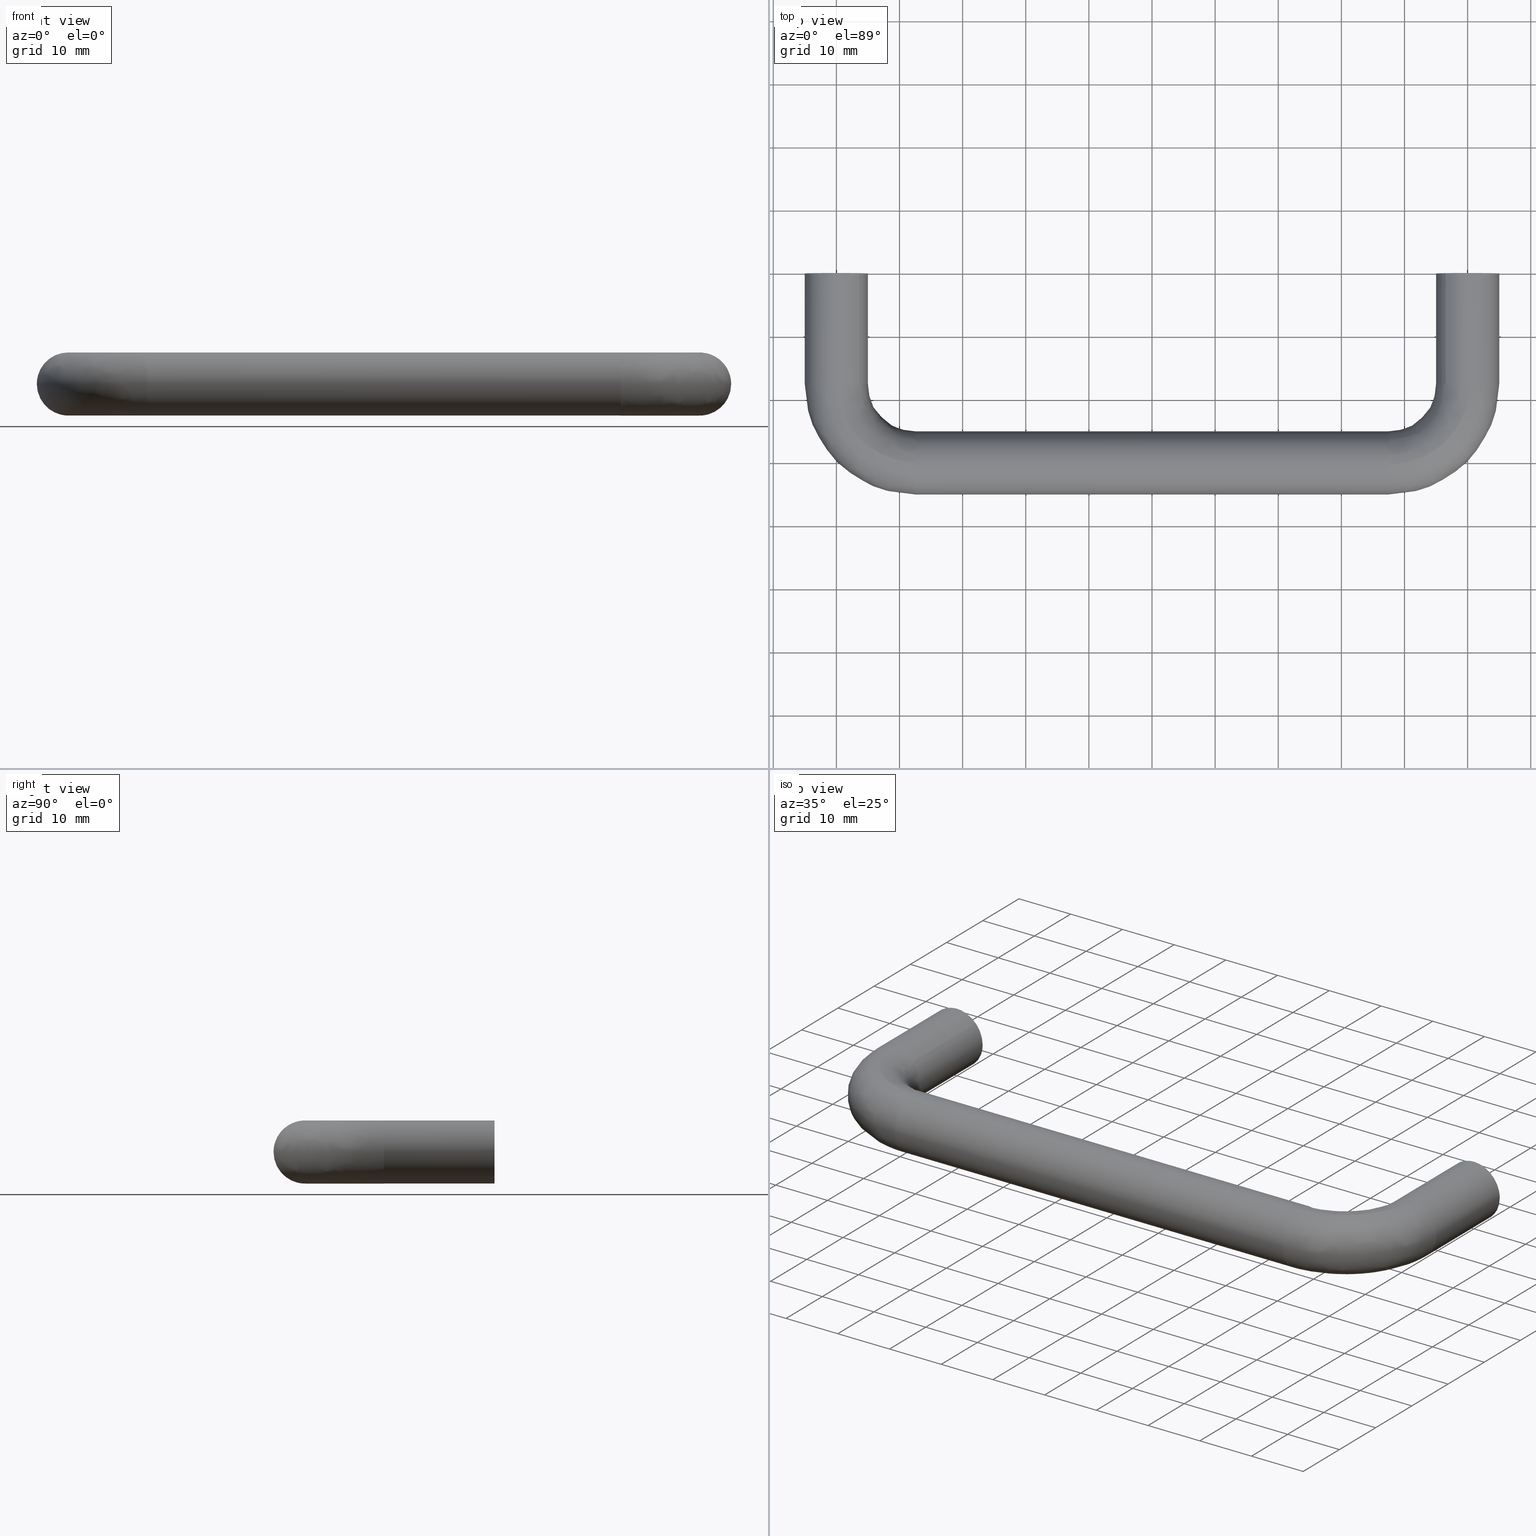
[diagram: canonical four-view strip — front | top / right | iso, engineering-drawing reading convention]
A machine part, canonical four-view strip (front | top / right | iso — engineering-drawing reading convention). The complete STEP part file that produces these views, byte-faithful:
ISO-10303-21;
HEADER;
/****************************************************************
 * Generated by software with PDE/Lib inside                    *
 * PDElib Version 4.4.1-0003, patched  Thursday August 19 11:58 *
 * International Technegroup Inc. (www.iti-oh.com)              *
 ****************************************************************/
FILE_DESCRIPTION((''),'2;1');
FILE_NAME('','2005-10-07T11:56:52',(''),(''),'','CADfix','');
FILE_SCHEMA(('AUTOMOTIVE_DESIGN'));
ENDSEC;
DATA;
#5=APPLICATION_CONTEXT('automotive design');
#6=APPLICATION_PROTOCOL_DEFINITION('Draft International Standard','automotive_design',1998,#5);
#7=PRODUCT_CONTEXT('None',#5,'mechanical');
#8=PRODUCT('pull','','None',(#7));
#9=PRODUCT_RELATED_PRODUCT_CATEGORY('part','description',(#8));
#10=PRODUCT_DEFINITION_FORMATION('None','None',#8);
#11=PRODUCT_DEFINITION_CONTEXT('part definition',#5,'design');
#12=PRODUCT_DEFINITION('None','None',#10,#11);
#18=(NAMED_UNIT(*)PLANE_ANGLE_UNIT()SI_UNIT($,.RADIAN.));
#19=DIMENSIONAL_EXPONENTS(0.0,0.0,0.0,0.0,0.0,0.0,0.0);
#20=PLANE_ANGLE_MEASURE_WITH_UNIT(PLANE_ANGLE_MEASURE(0.017453292500000),#18);
#24=(CONVERSION_BASED_UNIT('DEGREE',#20)NAMED_UNIT(#19)PLANE_ANGLE_UNIT());
#28=(NAMED_UNIT(*)SI_UNIT($,.STERADIAN.)SOLID_ANGLE_UNIT());
#32=(LENGTH_UNIT()NAMED_UNIT(*)SI_UNIT(.MILLI.,.METRE.));
#34=UNCERTAINTY_MEASURE_WITH_UNIT(LENGTH_MEASURE(0.001000000000000),#32,'DISTANCE_ACCURACY_VALUE','');
#36=(GEOMETRIC_REPRESENTATION_CONTEXT(3)GLOBAL_UNCERTAINTY_ASSIGNED_CONTEXT((#34))GLOBAL_UNIT_ASSIGNED_CONTEXT((#24,#28,#32))REPRESENTATION_CONTEXT('None','None'));
#37=AXIS2_PLACEMENT_3D('',#38,#39,#40);
#38=CARTESIAN_POINT('',(0.0,0.0,0.0));
#39=DIRECTION('',(0.0,0.0,1.0));
#40=DIRECTION('',(1.0,0.0,0.0));
#41=ADVANCED_BREP_SHAPE_REPRESENTATION('',(#37,#1355),#36);
#42=PRODUCT_DEFINITION_SHAPE('','',#12);
#43=SHAPE_DEFINITION_REPRESENTATION(#42,#41);
#44=CARTESIAN_POINT('',(-2.990752001199383,-16.399999999999999,0.235377287183537));
#45=CARTESIAN_POINT('',(-2.755374714015846,-16.399999999999999,3.226129288382921));
#46=CARTESIAN_POINT('',(0.235377287183537,-16.399999999999999,2.990752001199383));
#47=CARTESIAN_POINT('',(3.226129288382921,-16.399999999999999,2.755374714015846));
#48=CARTESIAN_POINT('',(2.990752001199383,-16.399999999999999,-0.235377287183537));
#49=CARTESIAN_POINT('',(-2.990752001199383,0.410000000000000,0.235377287183537));
#50=CARTESIAN_POINT('',(-2.755374714015846,0.410000000000000,3.226129288382921));
#51=CARTESIAN_POINT('',(0.235377287183537,0.410000000000000,2.990752001199383));
#52=CARTESIAN_POINT('',(3.226129288382921,0.410000000000000,2.755374714015846));
#53=CARTESIAN_POINT('',(2.990752001199383,0.410000000000000,-0.235377287183537));
#61=(BOUNDED_SURFACE()B_SPLINE_SURFACE(2,1,((#44,#49),(#45,#50),(#46,#51),(#47,#52),(#48,#53)),.UNSPECIFIED.,.F.,.F.,.U.)B_SPLINE_SURFACE_WITH_KNOTS((3,2,3),(2,2),(0.0,4.970562748477140,9.941125496954280),(0.0,16.809999999999999),.UNSPECIFIED.)GEOMETRIC_REPRESENTATION_ITEM()RATIONAL_B_SPLINE_SURFACE(((1.0,1.0),(0.707106781186548,0.707106781186548),(1.0,1.0),(0.707106781186548,0.707106781186548),(1.0,1.0)))REPRESENTATION_ITEM('')SURFACE());
#62=CARTESIAN_POINT('',(0.0,-16.0,3.0));
#63=VERTEX_POINT('',#62);
#64=CARTESIAN_POINT('',(-2.990752001171563,-16.0,0.235377287537022));
#65=VERTEX_POINT('',#64);
#66=CARTESIAN_POINT('',(0.0,-16.0,3.0));
#67=CARTESIAN_POINT('',(-2.773171474317056,-16.000000000000004,3.000000000000000));
#68=CARTESIAN_POINT('',(-2.990752001171563,-16.000000000000007,0.235377287537022));
#76=(BOUNDED_CURVE()B_SPLINE_CURVE(2,(#66,#67,#68),.UNSPECIFIED.,.F.,.U.)B_SPLINE_CURVE_WITH_KNOTS((3,3),(0.0,0.236331300592245),.UNSPECIFIED.)CURVE()GEOMETRIC_REPRESENTATION_ITEM()RATIONAL_B_SPLINE_CURVE((1.0,0.723120658652672,0.969723356087248))REPRESENTATION_ITEM(''));
#77=EDGE_CURVE('',#63,#65,#76,.T.);
#78=ORIENTED_EDGE('',*,*,#77,.T.);
#79=CARTESIAN_POINT('',(-2.990752001171563,-8.326673E-017,0.235377287537022));
#80=VERTEX_POINT('',#79);
#81=CARTESIAN_POINT('',(-2.990752001171563,-16.0,0.235377287537022));
#82=CARTESIAN_POINT('',(-2.990752001171563,-8.326673E-017,0.235377287537022));
#83=QUASI_UNIFORM_CURVE('',1,(#81,#82),.UNSPECIFIED.,.F.,.U.);
#84=EDGE_CURVE('',#65,#80,#83,.T.);
#85=ORIENTED_EDGE('',*,*,#84,.T.);
#86=CARTESIAN_POINT('',(0.0,0.0,3.0));
#87=VERTEX_POINT('',#86);
#88=CARTESIAN_POINT('',(0.0,0.0,3.0));
#89=CARTESIAN_POINT('',(-2.773171474317056,0.0,3.000000000000000));
#90=CARTESIAN_POINT('',(-2.990752001171563,-8.326673E-017,0.235377287537022));
#98=(BOUNDED_CURVE()B_SPLINE_CURVE(2,(#88,#89,#90),.UNSPECIFIED.,.F.,.U.)B_SPLINE_CURVE_WITH_KNOTS((3,3),(0.0,0.236331300592245),.UNSPECIFIED.)CURVE()GEOMETRIC_REPRESENTATION_ITEM()RATIONAL_B_SPLINE_CURVE((1.0,0.723120658652672,0.969723356087248))REPRESENTATION_ITEM(''));
#99=EDGE_CURVE('',#87,#80,#98,.T.);
#100=ORIENTED_EDGE('',*,*,#99,.F.);
#101=CARTESIAN_POINT('',(2.990752001171563,-8.326673E-017,-0.235377287537022));
#102=VERTEX_POINT('',#101);
#103=CARTESIAN_POINT('',(2.990752001171563,-8.326673E-017,-0.235377287537022));
#104=CARTESIAN_POINT('',(3.000000000000000,0.0,-0.117870321378136));
#105=CARTESIAN_POINT('',(3.0,0.0,0.0));
#106=CARTESIAN_POINT('',(3.0,0.0,3.0));
#107=CARTESIAN_POINT('',(0.0,0.0,3.0));
#115=(BOUNDED_CURVE()B_SPLINE_CURVE(2,(#103,#104,#105,#106,#107),.UNSPECIFIED.,.F.,.U.)B_SPLINE_CURVE_WITH_KNOTS((3,2,3),(0.736331300592245,0.750000000000000,1.0),.UNSPECIFIED.)CURVE()GEOMETRIC_REPRESENTATION_ITEM()RATIONAL_B_SPLINE_CURVE((0.969723356087248,0.983986122533876,1.0,0.707106781186548,1.0))REPRESENTATION_ITEM(''));
#116=EDGE_CURVE('',#102,#87,#115,.T.);
#117=ORIENTED_EDGE('',*,*,#116,.F.);
#118=CARTESIAN_POINT('',(2.990752001171563,-16.0,-0.235377287537022));
#119=VERTEX_POINT('',#118);
#120=CARTESIAN_POINT('',(2.990752001171563,-16.0,-0.235377287537022));
#121=CARTESIAN_POINT('',(2.990752001171563,-8.326673E-017,-0.235377287537022));
#122=QUASI_UNIFORM_CURVE('',1,(#120,#121),.UNSPECIFIED.,.F.,.U.);
#123=EDGE_CURVE('',#119,#102,#122,.T.);
#124=ORIENTED_EDGE('',*,*,#123,.F.);
#125=CARTESIAN_POINT('',(2.990752001171563,-15.999999999999998,-0.235377287537022));
#126=CARTESIAN_POINT('',(3.000000000000000,-15.999999999999996,-0.117870321378136));
#127=CARTESIAN_POINT('',(3.0,-16.0,0.0));
#128=CARTESIAN_POINT('',(3.0,-15.999999999999998,3.0));
#129=CARTESIAN_POINT('',(0.0,-16.0,3.0));
#137=(BOUNDED_CURVE()B_SPLINE_CURVE(2,(#125,#126,#127,#128,#129),.UNSPECIFIED.,.F.,.U.)B_SPLINE_CURVE_WITH_KNOTS((3,2,3),(0.736331300592245,0.750000000000000,1.0),.UNSPECIFIED.)CURVE()GEOMETRIC_REPRESENTATION_ITEM()RATIONAL_B_SPLINE_CURVE((0.969723356087248,0.983986122533876,1.0,0.707106781186548,1.0))REPRESENTATION_ITEM(''));
#138=EDGE_CURVE('',#119,#63,#137,.T.);
#139=ORIENTED_EDGE('',*,*,#138,.T.);
#140=EDGE_LOOP('',(#78,#85,#100,#117,#124,#139));
#141=FACE_OUTER_BOUND('',#140,.T.);
#142=ADVANCED_FACE('',(#141),#61,.F.);
#143=CARTESIAN_POINT('',(2.990752001199383,-16.399999999999999,-0.235377287183537));
#144=CARTESIAN_POINT('',(2.755374714015846,-16.399999999999999,-3.226129288382921));
#145=CARTESIAN_POINT('',(-0.235377287183537,-16.399999999999999,-2.990752001199383));
#146=CARTESIAN_POINT('',(-3.226129288382921,-16.399999999999999,-2.755374714015846));
#147=CARTESIAN_POINT('',(-2.990752001199383,-16.399999999999999,0.235377287183537));
#148=CARTESIAN_POINT('',(2.990752001199383,0.410000000000000,-0.235377287183537));
#149=CARTESIAN_POINT('',(2.755374714015846,0.410000000000000,-3.226129288382921));
#150=CARTESIAN_POINT('',(-0.235377287183537,0.410000000000000,-2.990752001199383));
#151=CARTESIAN_POINT('',(-3.226129288382921,0.410000000000000,-2.755374714015846));
#152=CARTESIAN_POINT('',(-2.990752001199383,0.410000000000000,0.235377287183537));
#160=(BOUNDED_SURFACE()B_SPLINE_SURFACE(2,1,((#143,#148),(#144,#149),(#145,#150),(#146,#151),(#147,#152)),.UNSPECIFIED.,.F.,.F.,.U.)B_SPLINE_SURFACE_WITH_KNOTS((3,2,3),(2,2),(0.0,4.970562748477140,9.941125496954280),(0.0,16.809999999999999),.UNSPECIFIED.)GEOMETRIC_REPRESENTATION_ITEM()RATIONAL_B_SPLINE_SURFACE(((1.0,1.0),(0.707106781186548,0.707106781186548),(1.0,1.0),(0.707106781186548,0.707106781186548),(1.0,1.0)))REPRESENTATION_ITEM('')SURFACE());
#161=CARTESIAN_POINT('',(0.0,-16.0,-3.0));
#162=VERTEX_POINT('',#161);
#163=CARTESIAN_POINT('',(-2.990752001171564,-15.999999999999996,0.235377287537022));
#164=CARTESIAN_POINT('',(-3.000000000000000,-15.999999999999996,0.117870321378135));
#165=CARTESIAN_POINT('',(-3.0,-16.0,0.0));
#166=CARTESIAN_POINT('',(-3.0,-15.999999999999998,-3.0));
#167=CARTESIAN_POINT('',(0.0,-16.0,-3.0));
#175=(BOUNDED_CURVE()B_SPLINE_CURVE(2,(#163,#164,#165,#166,#167),.UNSPECIFIED.,.F.,.U.)B_SPLINE_CURVE_WITH_KNOTS((3,2,3),(0.236331300592245,0.250000000000000,0.500000000000000),.UNSPECIFIED.)CURVE()GEOMETRIC_REPRESENTATION_ITEM()RATIONAL_B_SPLINE_CURVE((0.969723356087248,0.983986122533876,1.0,0.707106781186548,1.0))REPRESENTATION_ITEM(''));
#176=EDGE_CURVE('',#65,#162,#175,.T.);
#177=ORIENTED_EDGE('',*,*,#176,.T.);
#178=CARTESIAN_POINT('',(0.0,-16.0,-3.0));
#179=CARTESIAN_POINT('',(2.773171474317065,-16.000000000000007,-3.0));
#180=CARTESIAN_POINT('',(2.990752001171563,-16.000000000000004,-0.235377287537022));
#188=(BOUNDED_CURVE()B_SPLINE_CURVE(2,(#178,#179,#180),.UNSPECIFIED.,.F.,.U.)B_SPLINE_CURVE_WITH_KNOTS((3,3),(0.500000000000000,0.736331300592245),.UNSPECIFIED.)CURVE()GEOMETRIC_REPRESENTATION_ITEM()RATIONAL_B_SPLINE_CURVE((1.0,0.723120658652671,0.969723356087250))REPRESENTATION_ITEM(''));
#189=EDGE_CURVE('',#162,#119,#188,.T.);
#190=ORIENTED_EDGE('',*,*,#189,.T.);
#191=ORIENTED_EDGE('',*,*,#123,.T.);
#192=CARTESIAN_POINT('',(0.0,0.0,-3.0));
#193=VERTEX_POINT('',#192);
#194=CARTESIAN_POINT('',(0.0,0.0,-3.0));
#195=CARTESIAN_POINT('',(2.773171474317065,0.0,-3.0));
#196=CARTESIAN_POINT('',(2.990752001171563,-8.326673E-017,-0.235377287537022));
#204=(BOUNDED_CURVE()B_SPLINE_CURVE(2,(#194,#195,#196),.UNSPECIFIED.,.F.,.U.)B_SPLINE_CURVE_WITH_KNOTS((3,3),(0.500000000000000,0.736331300592245),.UNSPECIFIED.)CURVE()GEOMETRIC_REPRESENTATION_ITEM()RATIONAL_B_SPLINE_CURVE((1.0,0.723120658652671,0.969723356087250))REPRESENTATION_ITEM(''));
#205=EDGE_CURVE('',#193,#102,#204,.T.);
#206=ORIENTED_EDGE('',*,*,#205,.F.);
#207=CARTESIAN_POINT('',(-2.990752001171564,-8.326673E-017,0.235377287537022));
#208=CARTESIAN_POINT('',(-3.000000000000000,0.0,0.117870321378135));
#209=CARTESIAN_POINT('',(-3.0,0.0,0.0));
#210=CARTESIAN_POINT('',(-3.0,0.0,-3.0));
#211=CARTESIAN_POINT('',(0.0,0.0,-3.0));
#219=(BOUNDED_CURVE()B_SPLINE_CURVE(2,(#207,#208,#209,#210,#211),.UNSPECIFIED.,.F.,.U.)B_SPLINE_CURVE_WITH_KNOTS((3,2,3),(0.236331300592245,0.250000000000000,0.500000000000000),.UNSPECIFIED.)CURVE()GEOMETRIC_REPRESENTATION_ITEM()RATIONAL_B_SPLINE_CURVE((0.969723356087248,0.983986122533876,1.0,0.707106781186548,1.0))REPRESENTATION_ITEM(''));
#220=EDGE_CURVE('',#80,#193,#219,.T.);
#221=ORIENTED_EDGE('',*,*,#220,.F.);
#222=ORIENTED_EDGE('',*,*,#84,.F.);
#223=EDGE_LOOP('',(#177,#190,#191,#206,#221,#222));
#224=FACE_OUTER_BOUND('',#223,.T.);
#225=ADVANCED_FACE('',(#224),#160,.F.);
#226=CARTESIAN_POINT('',(97.009247998800618,-16.399999999999999,0.235377287183537));
#227=CARTESIAN_POINT('',(97.244625285984156,-16.399999999999999,3.226129288382921));
#228=CARTESIAN_POINT('',(100.235377287183500,-16.399999999999999,2.990752001199383));
#229=CARTESIAN_POINT('',(103.226129288382920,-16.399999999999999,2.755374714015846));
#230=CARTESIAN_POINT('',(102.990752001199400,-16.399999999999999,-0.235377287183537));
#231=CARTESIAN_POINT('',(97.009247998800618,0.410000000000000,0.235377287183537));
#232=CARTESIAN_POINT('',(97.244625285984156,0.410000000000000,3.226129288382921));
#233=CARTESIAN_POINT('',(100.235377287183500,0.410000000000000,2.990752001199383));
#234=CARTESIAN_POINT('',(103.226129288382920,0.410000000000000,2.755374714015846));
#235=CARTESIAN_POINT('',(102.990752001199400,0.410000000000000,-0.235377287183537));
#243=(BOUNDED_SURFACE()B_SPLINE_SURFACE(2,1,((#226,#231),(#227,#232),(#228,#233),(#229,#234),(#230,#235)),.UNSPECIFIED.,.F.,.F.,.U.)B_SPLINE_SURFACE_WITH_KNOTS((3,2,3),(2,2),(0.0,4.970562748477149,9.941125496954298),(0.0,16.809999999999999),.UNSPECIFIED.)GEOMETRIC_REPRESENTATION_ITEM()RATIONAL_B_SPLINE_SURFACE(((1.0,1.0),(0.707106781186548,0.707106781186548),(1.0,1.0),(0.707106781186548,0.707106781186548),(1.0,1.0)))REPRESENTATION_ITEM('')SURFACE());
#244=CARTESIAN_POINT('',(100.0,-16.0,3.0));
#245=VERTEX_POINT('',#244);
#246=CARTESIAN_POINT('',(97.009247998828442,-16.0,0.235377287537022));
#247=VERTEX_POINT('',#246);
#248=CARTESIAN_POINT('',(100.0,-16.0,3.0));
#249=CARTESIAN_POINT('',(97.226828525682933,-16.000000000000004,3.000000000000000));
#250=CARTESIAN_POINT('',(97.009247998828442,-16.000000000000007,0.235377287537022));
#258=(BOUNDED_CURVE()B_SPLINE_CURVE(2,(#248,#249,#250),.UNSPECIFIED.,.F.,.U.)B_SPLINE_CURVE_WITH_KNOTS((3,3),(0.0,0.236331300592245),.UNSPECIFIED.)CURVE()GEOMETRIC_REPRESENTATION_ITEM()RATIONAL_B_SPLINE_CURVE((1.0,0.723120658652672,0.969723356087248))REPRESENTATION_ITEM(''));
#259=EDGE_CURVE('',#245,#247,#258,.T.);
#260=ORIENTED_EDGE('',*,*,#259,.T.);
#261=CARTESIAN_POINT('',(97.009247998828442,-8.326673E-017,0.235377287537022));
#262=VERTEX_POINT('',#261);
#263=CARTESIAN_POINT('',(97.009247998828442,-16.0,0.235377287537022));
#264=CARTESIAN_POINT('',(97.009247998828442,-8.326673E-017,0.235377287537022));
#265=QUASI_UNIFORM_CURVE('',1,(#263,#264),.UNSPECIFIED.,.F.,.U.);
#266=EDGE_CURVE('',#247,#262,#265,.T.);
#267=ORIENTED_EDGE('',*,*,#266,.T.);
#268=CARTESIAN_POINT('',(100.0,0.0,3.0));
#269=VERTEX_POINT('',#268);
#270=CARTESIAN_POINT('',(100.0,0.0,3.0));
#271=CARTESIAN_POINT('',(97.226828525682933,0.0,3.000000000000000));
#272=CARTESIAN_POINT('',(97.009247998828442,-8.326673E-017,0.235377287537022));
#280=(BOUNDED_CURVE()B_SPLINE_CURVE(2,(#270,#271,#272),.UNSPECIFIED.,.F.,.U.)B_SPLINE_CURVE_WITH_KNOTS((3,3),(0.0,0.236331300592245),.UNSPECIFIED.)CURVE()GEOMETRIC_REPRESENTATION_ITEM()RATIONAL_B_SPLINE_CURVE((1.0,0.723120658652672,0.969723356087248))REPRESENTATION_ITEM(''));
#281=EDGE_CURVE('',#269,#262,#280,.T.);
#282=ORIENTED_EDGE('',*,*,#281,.F.);
#283=CARTESIAN_POINT('',(102.990752001171600,-8.326673E-017,-0.235377287537022));
#284=VERTEX_POINT('',#283);
#285=CARTESIAN_POINT('',(102.990752001171560,-8.326673E-017,-0.235377287537022));
#286=CARTESIAN_POINT('',(102.999999999999990,0.0,-0.117870321378136));
#287=CARTESIAN_POINT('',(103.0,0.0,0.0));
#288=CARTESIAN_POINT('',(103.0,0.0,3.0));
#289=CARTESIAN_POINT('',(100.0,0.0,3.0));
#297=(BOUNDED_CURVE()B_SPLINE_CURVE(2,(#285,#286,#287,#288,#289),.UNSPECIFIED.,.F.,.U.)B_SPLINE_CURVE_WITH_KNOTS((3,2,3),(0.736331300592245,0.750000000000000,1.0),.UNSPECIFIED.)CURVE()GEOMETRIC_REPRESENTATION_ITEM()RATIONAL_B_SPLINE_CURVE((0.969723356087248,0.983986122533876,1.0,0.707106781186548,1.0))REPRESENTATION_ITEM(''));
#298=EDGE_CURVE('',#284,#269,#297,.T.);
#299=ORIENTED_EDGE('',*,*,#298,.F.);
#300=CARTESIAN_POINT('',(102.990752001171600,-16.0,-0.235377287537022));
#301=VERTEX_POINT('',#300);
#302=CARTESIAN_POINT('',(102.990752001171600,-16.0,-0.235377287537022));
#303=CARTESIAN_POINT('',(102.990752001171600,-8.326673E-017,-0.235377287537022));
#304=QUASI_UNIFORM_CURVE('',1,(#302,#303),.UNSPECIFIED.,.F.,.U.);
#305=EDGE_CURVE('',#301,#284,#304,.T.);
#306=ORIENTED_EDGE('',*,*,#305,.F.);
#307=CARTESIAN_POINT('',(102.990752001171560,-15.999999999999998,-0.235377287537022));
#308=CARTESIAN_POINT('',(102.999999999999990,-15.999999999999996,-0.117870321378136));
#309=CARTESIAN_POINT('',(103.0,-16.0,0.0));
#310=CARTESIAN_POINT('',(103.0,-15.999999999999998,3.0));
#311=CARTESIAN_POINT('',(100.0,-16.0,3.0));
#319=(BOUNDED_CURVE()B_SPLINE_CURVE(2,(#307,#308,#309,#310,#311),.UNSPECIFIED.,.F.,.U.)B_SPLINE_CURVE_WITH_KNOTS((3,2,3),(0.736331300592245,0.750000000000000,1.0),.UNSPECIFIED.)CURVE()GEOMETRIC_REPRESENTATION_ITEM()RATIONAL_B_SPLINE_CURVE((0.969723356087248,0.983986122533876,1.0,0.707106781186548,1.0))REPRESENTATION_ITEM(''));
#320=EDGE_CURVE('',#301,#245,#319,.T.);
#321=ORIENTED_EDGE('',*,*,#320,.T.);
#322=EDGE_LOOP('',(#260,#267,#282,#299,#306,#321));
#323=FACE_OUTER_BOUND('',#322,.T.);
#324=ADVANCED_FACE('',(#323),#243,.F.);
#325=CARTESIAN_POINT('',(102.990752001199400,-16.399999999999999,-0.235377287183537));
#326=CARTESIAN_POINT('',(102.755374714015830,-16.399999999999999,-3.226129288382921));
#327=CARTESIAN_POINT('',(99.764622712816461,-16.399999999999999,-2.990752001199383));
#328=CARTESIAN_POINT('',(96.773870711617093,-16.399999999999999,-2.755374714015846));
#329=CARTESIAN_POINT('',(97.009247998800618,-16.399999999999999,0.235377287183537));
#330=CARTESIAN_POINT('',(102.990752001199400,0.410000000000000,-0.235377287183537));
#331=CARTESIAN_POINT('',(102.755374714015830,0.410000000000000,-3.226129288382921));
#332=CARTESIAN_POINT('',(99.764622712816461,0.410000000000000,-2.990752001199383));
#333=CARTESIAN_POINT('',(96.773870711617093,0.410000000000000,-2.755374714015846));
#334=CARTESIAN_POINT('',(97.009247998800618,0.410000000000000,0.235377287183537));
#342=(BOUNDED_SURFACE()B_SPLINE_SURFACE(2,1,((#325,#330),(#326,#331),(#327,#332),(#328,#333),(#329,#334)),.UNSPECIFIED.,.F.,.F.,.U.)B_SPLINE_SURFACE_WITH_KNOTS((3,2,3),(2,2),(0.0,4.970562748477149,9.941125496954298),(0.0,16.809999999999999),.UNSPECIFIED.)GEOMETRIC_REPRESENTATION_ITEM()RATIONAL_B_SPLINE_SURFACE(((1.0,1.0),(0.707106781186548,0.707106781186548),(1.0,1.0),(0.707106781186548,0.707106781186548),(1.0,1.0)))REPRESENTATION_ITEM('')SURFACE());
#343=CARTESIAN_POINT('',(100.0,-16.0,-3.0));
#344=VERTEX_POINT('',#343);
#345=CARTESIAN_POINT('',(97.009247998828442,-16.000000000000007,0.235377287537022));
#346=CARTESIAN_POINT('',(97.0,-16.000000000000007,0.117870321378135));
#347=CARTESIAN_POINT('',(97.0,-16.0,0.0));
#348=CARTESIAN_POINT('',(97.0,-15.999999999999998,-3.0));
#349=CARTESIAN_POINT('',(100.0,-16.0,-3.0));
#357=(BOUNDED_CURVE()B_SPLINE_CURVE(2,(#345,#346,#347,#348,#349),.UNSPECIFIED.,.F.,.U.)B_SPLINE_CURVE_WITH_KNOTS((3,2,3),(0.236331300592245,0.250000000000000,0.500000000000000),.UNSPECIFIED.)CURVE()GEOMETRIC_REPRESENTATION_ITEM()RATIONAL_B_SPLINE_CURVE((0.969723356087248,0.983986122533876,1.0,0.707106781186548,1.0))REPRESENTATION_ITEM(''));
#358=EDGE_CURVE('',#247,#344,#357,.T.);
#359=ORIENTED_EDGE('',*,*,#358,.T.);
#360=CARTESIAN_POINT('',(100.0,-16.0,-3.0));
#361=CARTESIAN_POINT('',(102.773171474317050,-16.000000000000007,-3.0));
#362=CARTESIAN_POINT('',(102.990752001171560,-16.000000000000004,-0.235377287537022));
#370=(BOUNDED_CURVE()B_SPLINE_CURVE(2,(#360,#361,#362),.UNSPECIFIED.,.F.,.U.)B_SPLINE_CURVE_WITH_KNOTS((3,3),(0.500000000000000,0.736331300592245),.UNSPECIFIED.)CURVE()GEOMETRIC_REPRESENTATION_ITEM()RATIONAL_B_SPLINE_CURVE((1.0,0.723120658652671,0.969723356087250))REPRESENTATION_ITEM(''));
#371=EDGE_CURVE('',#344,#301,#370,.T.);
#372=ORIENTED_EDGE('',*,*,#371,.T.);
#373=ORIENTED_EDGE('',*,*,#305,.T.);
#374=CARTESIAN_POINT('',(100.0,0.0,-3.0));
#375=VERTEX_POINT('',#374);
#376=CARTESIAN_POINT('',(100.0,0.0,-3.0));
#377=CARTESIAN_POINT('',(102.773171474317050,0.0,-3.0));
#378=CARTESIAN_POINT('',(102.990752001171560,-8.326673E-017,-0.235377287537022));
#386=(BOUNDED_CURVE()B_SPLINE_CURVE(2,(#376,#377,#378),.UNSPECIFIED.,.F.,.U.)B_SPLINE_CURVE_WITH_KNOTS((3,3),(0.500000000000000,0.736331300592245),.UNSPECIFIED.)CURVE()GEOMETRIC_REPRESENTATION_ITEM()RATIONAL_B_SPLINE_CURVE((1.0,0.723120658652671,0.969723356087250))REPRESENTATION_ITEM(''));
#387=EDGE_CURVE('',#375,#284,#386,.T.);
#388=ORIENTED_EDGE('',*,*,#387,.F.);
#389=CARTESIAN_POINT('',(97.009247998828442,-8.326673E-017,0.235377287537022));
#390=CARTESIAN_POINT('',(97.0,0.0,0.117870321378135));
#391=CARTESIAN_POINT('',(97.0,0.0,0.0));
#392=CARTESIAN_POINT('',(97.0,0.0,-3.0));
#393=CARTESIAN_POINT('',(100.0,0.0,-3.0));
#401=(BOUNDED_CURVE()B_SPLINE_CURVE(2,(#389,#390,#391,#392,#393),.UNSPECIFIED.,.F.,.U.)B_SPLINE_CURVE_WITH_KNOTS((3,2,3),(0.236331300592245,0.250000000000000,0.500000000000000),.UNSPECIFIED.)CURVE()GEOMETRIC_REPRESENTATION_ITEM()RATIONAL_B_SPLINE_CURVE((0.969723356087248,0.983986122533876,1.0,0.707106781186548,1.0))REPRESENTATION_ITEM(''));
#402=EDGE_CURVE('',#262,#375,#401,.T.);
#403=ORIENTED_EDGE('',*,*,#402,.F.);
#404=ORIENTED_EDGE('',*,*,#266,.F.);
#405=EDGE_LOOP('',(#359,#372,#373,#388,#403,#404));
#406=FACE_OUTER_BOUND('',#405,.T.);
#407=ADVANCED_FACE('',(#406),#342,.F.);
#408=CARTESIAN_POINT('',(103.294847860799710,-17.937500000711651,-3.760847986050986));
#409=CARTESIAN_POINT('',(99.743278128228511,-17.937500000711651,-6.872348897346878));
#410=CARTESIAN_POINT('',(96.433747754229088,-17.937500000711651,-3.504546321499253));
#411=CARTESIAN_POINT('',(92.929201432729840,-17.937500000711651,0.061705924271653));
#412=CARTESIAN_POINT('',(96.495453678500752,-17.937500000711651,3.566252245770907));
#413=CARTESIAN_POINT('',(103.294847860799710,0.448437500017807,-3.760847986050986));
#414=CARTESIAN_POINT('',(99.743278128228511,0.448437500017807,-6.872348897346878));
#415=CARTESIAN_POINT('',(96.433747754229088,0.448437500017807,-3.504546321499253));
#416=CARTESIAN_POINT('',(92.929201432729840,0.448437500017807,0.061705924271653));
#417=CARTESIAN_POINT('',(96.495453678500752,0.448437500017807,3.566252245770907));
#425=(BOUNDED_SURFACE()B_SPLINE_SURFACE(2,1,((#408,#413),(#409,#414),(#410,#415),(#411,#416),(#412,#417)),.UNSPECIFIED.,.F.,.F.,.U.)B_SPLINE_SURFACE_WITH_KNOTS((3,2,3),(2,2),(0.0,7.952900397563423,16.237171645025320),(0.0,18.385937500729462),.UNSPECIFIED.)GEOMETRIC_REPRESENTATION_ITEM()RATIONAL_B_SPLINE_SURFACE(((0.977505800795127,0.977505800795127),(0.718822509939086,0.718822509939086),(1.0,1.0),(0.707106781186548,0.707106781186548),(1.0,1.0)))REPRESENTATION_ITEM('')SURFACE());
#426=CARTESIAN_POINT('',(103.294845292552000,-17.499999999999812,-3.760850236068472));
#427=VERTEX_POINT('',#426);
#428=CARTESIAN_POINT('',(99.937169800017131,-17.500000000407269,-4.999605221011965));
#429=VERTEX_POINT('',#428);
#430=CARTESIAN_POINT('',(103.294845292552000,-17.499999999999819,-3.760850236068472));
#431=CARTESIAN_POINT('',(101.880436946055500,-17.499999999999755,-5.0));
#432=CARTESIAN_POINT('',(100.0,-17.499999999999751,-5.0));
#433=CARTESIAN_POINT('',(99.968583659474390,-17.499999999999751,-5.0));
#434=CARTESIAN_POINT('',(99.937169800017131,-17.500000000407265,-4.999605221011965));
#442=(BOUNDED_CURVE()B_SPLINE_CURVE(2,(#430,#431,#432,#433,#434),.UNSPECIFIED.,.F.,.U.)B_SPLINE_CURVE_WITH_KNOTS((3,2,3),(0.134954823228566,0.250000000000000,0.252215704118098),.UNSPECIFIED.)CURVE()GEOMETRIC_REPRESENTATION_ITEM()RATIONAL_B_SPLINE_CURVE((0.854482199561562,0.865216191465808,1.0,0.997404141155648,0.994854295552348))REPRESENTATION_ITEM(''));
#443=EDGE_CURVE('',#427,#429,#442,.T.);
#444=ORIENTED_EDGE('',*,*,#443,.T.);
#445=CARTESIAN_POINT('',(95.0,-17.499999999999751,0.0));
#446=VERTEX_POINT('',#445);
#447=CARTESIAN_POINT('',(99.937169800017131,-17.500000000407269,-4.999605221011965));
#448=CARTESIAN_POINT('',(95.000000000000014,-17.499999999999748,-4.937559648418342));
#449=CARTESIAN_POINT('',(95.0,-17.499999999999751,0.0));
#457=(BOUNDED_CURVE()B_SPLINE_CURVE(2,(#447,#448,#449),.UNSPECIFIED.,.F.,.U.)B_SPLINE_CURVE_WITH_KNOTS((3,3),(0.252215704118098,0.500000000000000),.UNSPECIFIED.)CURVE()GEOMETRIC_REPRESENTATION_ITEM()RATIONAL_B_SPLINE_CURVE((0.994854295552348,0.709702640030899,1.0))REPRESENTATION_ITEM(''));
#458=EDGE_CURVE('',#429,#446,#457,.T.);
#459=ORIENTED_EDGE('',*,*,#458,.T.);
#460=CARTESIAN_POINT('',(96.495454011192379,-17.499999999999758,3.566252572706000));
#461=VERTEX_POINT('',#460);
#462=CARTESIAN_POINT('',(95.0,-17.499999999999751,0.0));
#463=CARTESIAN_POINT('',(95.0,-17.499999999999755,2.096674557256572));
#464=CARTESIAN_POINT('',(96.495454011192379,-17.499999999999758,3.566252572706000));
#472=(BOUNDED_CURVE()B_SPLINE_CURVE(2,(#462,#463,#464),.UNSPECIFIED.,.F.,.U.)B_SPLINE_CURVE_WITH_KNOTS((3,3),(0.500000000000000,0.626316785744029),.UNSPECIFIED.)CURVE()GEOMETRIC_REPRESENTATION_ITEM()RATIONAL_B_SPLINE_CURVE((1.0,0.852010680133048,0.853569641946403))REPRESENTATION_ITEM(''));
#473=EDGE_CURVE('',#446,#461,#472,.T.);
#474=ORIENTED_EDGE('',*,*,#473,.T.);
#475=CARTESIAN_POINT('',(96.495454007183923,1.351697E-014,3.566252568766891));
#476=VERTEX_POINT('',#475);
#477=CARTESIAN_POINT('',(96.495454011192379,-17.499999999999758,3.566252572706000));
#478=CARTESIAN_POINT('',(96.495454007183923,1.351697E-014,3.566252568766891));
#479=QUASI_UNIFORM_CURVE('',1,(#477,#478),.UNSPECIFIED.,.F.,.U.);
#480=EDGE_CURVE('',#461,#476,#479,.T.);
#481=ORIENTED_EDGE('',*,*,#480,.T.);
#482=CARTESIAN_POINT('',(95.0,1.387779E-014,0.0));
#483=VERTEX_POINT('',#482);
#484=CARTESIAN_POINT('',(95.0,1.387779E-014,0.0));
#485=CARTESIAN_POINT('',(95.000000000000014,1.387779E-014,2.096674550648371));
#486=CARTESIAN_POINT('',(96.495454007183923,1.351697E-014,3.566252568766892));
#494=(BOUNDED_CURVE()B_SPLINE_CURVE(2,(#484,#485,#486),.UNSPECIFIED.,.F.,.U.)B_SPLINE_CURVE_WITH_KNOTS((3,3),(0.500000000000000,0.626316785404827),.UNSPECIFIED.)CURVE()GEOMETRIC_REPRESENTATION_ITEM()RATIONAL_B_SPLINE_CURVE((1.0,0.852010680530448,0.853569641938031))REPRESENTATION_ITEM(''));
#495=EDGE_CURVE('',#483,#476,#494,.T.);
#496=ORIENTED_EDGE('',*,*,#495,.F.);
#497=CARTESIAN_POINT('',(103.294845323498610,1.327082E-014,-3.760850208956461));
#498=VERTEX_POINT('',#497);
#499=CARTESIAN_POINT('',(103.294845323498630,1.327082E-014,-3.760850208956461));
#500=CARTESIAN_POINT('',(101.880436969536730,1.387779E-014,-5.000000000000001));
#501=CARTESIAN_POINT('',(100.0,1.387779E-014,-5.0));
#502=CARTESIAN_POINT('',(95.000000000000014,1.387779E-014,-5.000000000000001));
#503=CARTESIAN_POINT('',(95.0,1.387779E-014,0.0));
#511=(BOUNDED_CURVE()B_SPLINE_CURVE(2,(#499,#500,#501,#502,#503),.UNSPECIFIED.,.F.,.U.)B_SPLINE_CURVE_WITH_KNOTS((3,2,3),(0.134954821985611,0.250000000000000,0.500000000000000),.UNSPECIFIED.)CURVE()GEOMETRIC_REPRESENTATION_ITEM()RATIONAL_B_SPLINE_CURVE((0.854482199329621,0.865216190009596,1.0,0.707106781186548,1.0))REPRESENTATION_ITEM(''));
#512=EDGE_CURVE('',#498,#483,#511,.T.);
#513=ORIENTED_EDGE('',*,*,#512,.F.);
#514=CARTESIAN_POINT('',(103.294845292552000,-17.499999999999812,-3.760850236068472));
#515=CARTESIAN_POINT('',(103.294845323498610,1.327082E-014,-3.760850208956461));
#516=QUASI_UNIFORM_CURVE('',1,(#514,#515),.UNSPECIFIED.,.F.,.U.);
#517=EDGE_CURVE('',#427,#498,#516,.T.);
#518=ORIENTED_EDGE('',*,*,#517,.F.);
#519=EDGE_LOOP('',(#444,#459,#474,#481,#496,#513,#518));
#520=FACE_OUTER_BOUND('',#519,.T.);
#521=ADVANCED_FACE('',(#520),#425,.T.);
#522=CARTESIAN_POINT('',(96.495453678500752,-17.937500000711651,3.566252245770907));
#523=CARTESIAN_POINT('',(100.061705924271680,-17.937500000711651,7.070798567270160));
#524=CARTESIAN_POINT('',(103.566252245770900,-17.937500000711651,3.504546321499253));
#525=CARTESIAN_POINT('',(107.070798567270160,-17.937500000711651,-0.061705924271653));
#526=CARTESIAN_POINT('',(103.504546321499300,-17.937500000711651,-3.566252245770907));
#527=CARTESIAN_POINT('',(103.402481714390890,-17.937500000711651,-3.666550855837281));
#528=CARTESIAN_POINT('',(103.294847860799710,-17.937500000711651,-3.760847986050986));
#529=CARTESIAN_POINT('',(96.495453678500752,0.448437500017807,3.566252245770907));
#530=CARTESIAN_POINT('',(100.061705924271680,0.448437500017807,7.070798567270160));
#531=CARTESIAN_POINT('',(103.566252245770900,0.448437500017807,3.504546321499253));
#532=CARTESIAN_POINT('',(107.070798567270160,0.448437500017807,-0.061705924271653));
#533=CARTESIAN_POINT('',(103.504546321499300,0.448437500017807,-3.566252245770907));
#534=CARTESIAN_POINT('',(103.402481714390890,0.448437500017807,-3.666550855837281));
#535=CARTESIAN_POINT('',(103.294847860799710,0.448437500017807,-3.760847986050986));
#543=(BOUNDED_SURFACE()B_SPLINE_SURFACE(2,1,((#522,#529),(#523,#530),(#524,#531),(#525,#532),(#526,#533),(#527,#534),(#528,#535)),.UNSPECIFIED.,.F.,.F.,.U.)B_SPLINE_SURFACE_WITH_KNOTS((3,2,2,3),(2,2),(0.0,8.284271247461899,16.568542494923800,16.899913344822270),(0.0,18.385937500729462),.UNSPECIFIED.)GEOMETRIC_REPRESENTATION_ITEM()RATIONAL_B_SPLINE_SURFACE(((1.0,1.0),(0.707106781186548,0.707106781186548),(1.0,1.0),(0.707106781186548,0.707106781186548),(1.0,1.0),(0.988284271247462,0.988284271247462),(0.977505800795127,0.977505800795127)))REPRESENTATION_ITEM('')SURFACE());
#544=CARTESIAN_POINT('',(105.0,-17.499999999999751,0.0));
#545=VERTEX_POINT('',#544);
#546=CARTESIAN_POINT('',(105.0,-17.499999999999751,0.0));
#547=CARTESIAN_POINT('',(105.000000000000030,-17.499999999999755,-2.266980337442762));
#548=CARTESIAN_POINT('',(103.294845292552000,-17.499999999999819,-3.760850236068472));
#556=(BOUNDED_CURVE()B_SPLINE_CURVE(2,(#546,#547,#548),.UNSPECIFIED.,.F.,.U.)B_SPLINE_CURVE_WITH_KNOTS((3,3),(0.0,0.134954823228566),.UNSPECIFIED.)CURVE()GEOMETRIC_REPRESENTATION_ITEM()RATIONAL_B_SPLINE_CURVE((1.0,0.841890589720740,0.854482199561562))REPRESENTATION_ITEM(''));
#557=EDGE_CURVE('',#545,#427,#556,.T.);
#558=ORIENTED_EDGE('',*,*,#557,.T.);
#559=ORIENTED_EDGE('',*,*,#517,.T.);
#560=CARTESIAN_POINT('',(105.0,1.387779E-014,0.0));
#561=VERTEX_POINT('',#560);
#562=CARTESIAN_POINT('',(105.0,1.387779E-014,0.0));
#563=CARTESIAN_POINT('',(105.000000000000010,1.387779E-014,-2.266980312642356));
#564=CARTESIAN_POINT('',(103.294845323498630,1.327082E-014,-3.760850208956461));
#572=(BOUNDED_CURVE()B_SPLINE_CURVE(2,(#562,#563,#564),.UNSPECIFIED.,.F.,.U.)B_SPLINE_CURVE_WITH_KNOTS((3,3),(0.0,0.134954821985611),.UNSPECIFIED.)CURVE()GEOMETRIC_REPRESENTATION_ITEM()RATIONAL_B_SPLINE_CURVE((1.0,0.841890591176951,0.854482199329621))REPRESENTATION_ITEM(''));
#573=EDGE_CURVE('',#561,#498,#572,.T.);
#574=ORIENTED_EDGE('',*,*,#573,.F.);
#575=CARTESIAN_POINT('',(96.495454007183923,1.351697E-014,3.566252568766892));
#576=CARTESIAN_POINT('',(97.954446530814650,1.387779E-014,5.0));
#577=CARTESIAN_POINT('',(100.0,1.387779E-014,5.0));
#578=CARTESIAN_POINT('',(105.000000000000010,1.387779E-014,5.000000000000001));
#579=CARTESIAN_POINT('',(105.0,1.387779E-014,0.0));
#587=(BOUNDED_CURVE()B_SPLINE_CURVE(2,(#575,#576,#577,#578,#579),.UNSPECIFIED.,.F.,.U.)B_SPLINE_CURVE_WITH_KNOTS((3,2,3),(0.626316785404827,0.750000000000000,1.0),.UNSPECIFIED.)CURVE()GEOMETRIC_REPRESENTATION_ITEM()RATIONAL_B_SPLINE_CURVE((0.853569641938031,0.855096100656099,1.0,0.707106781186548,1.0))REPRESENTATION_ITEM(''));
#588=EDGE_CURVE('',#476,#561,#587,.T.);
#589=ORIENTED_EDGE('',*,*,#588,.F.);
#590=ORIENTED_EDGE('',*,*,#480,.F.);
#591=CARTESIAN_POINT('',(100.348666260113110,-17.500000000694289,4.987828369045865));
#592=VERTEX_POINT('',#591);
#593=CARTESIAN_POINT('',(96.495454011192379,-17.499999999999758,3.566252572706000));
#594=CARTESIAN_POINT('',(97.954446537375290,-17.499999999999751,5.000000000000001));
#595=CARTESIAN_POINT('',(100.0,-17.499999999999751,5.0));
#596=CARTESIAN_POINT('',(100.174545581617640,-17.499999999999751,5.0));
#597=CARTESIAN_POINT('',(100.348666260113110,-17.500000000694286,4.987828369045865));
#605=(BOUNDED_CURVE()B_SPLINE_CURVE(2,(#593,#594,#595,#596,#597),.UNSPECIFIED.,.F.,.U.)B_SPLINE_CURVE_WITH_KNOTS((3,2,3),(0.626316785744030,0.750000000000000,0.762166313619054),.UNSPECIFIED.)CURVE()GEOMETRIC_REPRESENTATION_ITEM()RATIONAL_B_SPLINE_CURVE((0.853569641946403,0.855096101053501,1.0,0.985746276972085,0.972879876060944))REPRESENTATION_ITEM(''));
#606=EDGE_CURVE('',#461,#592,#605,.T.);
#607=ORIENTED_EDGE('',*,*,#606,.T.);
#608=CARTESIAN_POINT('',(100.348666260113110,-17.500000000694286,4.987828369045866));
#609=CARTESIAN_POINT('',(105.000000000000030,-17.499999999999758,4.662684232142611));
#610=CARTESIAN_POINT('',(105.0,-17.499999999999751,0.0));
#618=(BOUNDED_CURVE()B_SPLINE_CURVE(2,(#608,#609,#610),.UNSPECIFIED.,.F.,.U.)B_SPLINE_CURVE_WITH_KNOTS((3,3),(0.762166313619055,1.0),.UNSPECIFIED.)CURVE()GEOMETRIC_REPRESENTATION_ITEM()RATIONAL_B_SPLINE_CURVE((0.972879876060943,0.721360504214463,1.0))REPRESENTATION_ITEM(''));
#619=EDGE_CURVE('',#592,#545,#618,.T.);
#620=ORIENTED_EDGE('',*,*,#619,.T.);
#621=EDGE_LOOP('',(#558,#559,#574,#589,#590,#607,#620));
#622=FACE_OUTER_BOUND('',#621,.T.);
#623=ADVANCED_FACE('',(#622),#543,.T.);
#624=CARTESIAN_POINT('',(10.624999999436806,-25.521972536820858,2.224245948408881));
#625=CARTESIAN_POINT('',(10.624999999436806,-25.856101220587441,2.896940181352409));
#626=CARTESIAN_POINT('',(10.624999999436810,-26.373128144938558,3.441772878468769));
#627=CARTESIAN_POINT('',(10.624999999436808,-29.814901023407330,7.068644733530205));
#628=CARTESIAN_POINT('',(10.624999999436810,-33.441772878468768,3.626871855061437));
#629=CARTESIAN_POINT('',(10.624999999436808,-37.068644733530199,0.185098976592668));
#630=CARTESIAN_POINT('',(10.624999999436810,-33.626871855061438,-3.441772878468769));
#631=CARTESIAN_POINT('',(10.624999999436808,-30.185098976592677,-7.068644733530205));
#632=CARTESIAN_POINT('',(10.624999999436810,-26.558227121531232,-3.626871855061437));
#633=CARTESIAN_POINT('',(89.421875000305562,-25.521972536820837,2.224245948408881));
#634=CARTESIAN_POINT('',(89.421875000305576,-25.856101220587430,2.896940181352409));
#635=CARTESIAN_POINT('',(89.421875000305576,-26.373128144938551,3.441772878468769));
#636=CARTESIAN_POINT('',(89.421875000305590,-29.814901023407316,7.068644733530205));
#637=CARTESIAN_POINT('',(89.421875000305576,-33.441772878468761,3.626871855061437));
#638=CARTESIAN_POINT('',(89.421875000305590,-37.068644733530199,0.185098976592668));
#639=CARTESIAN_POINT('',(89.421875000305576,-33.626871855061417,-3.441772878468769));
#640=CARTESIAN_POINT('',(89.421875000305590,-30.185098976592666,-7.068644733530205));
#641=CARTESIAN_POINT('',(89.421875000305576,-26.558227121531221,-3.626871855061437));
#649=(BOUNDED_SURFACE()B_SPLINE_SURFACE(2,1,((#624,#633),(#625,#634),(#626,#635),(#627,#636),(#628,#637),(#629,#638),(#630,#639),(#631,#640),(#632,#641)),.UNSPECIFIED.,.F.,.F.,.U.)B_SPLINE_SURFACE_WITH_KNOTS((3,2,2,2,3),(2,2),(0.0,1.656854249492382,9.941125496954289,18.225396744416201,26.509667991878100),(0.0,78.796875000868781),.UNSPECIFIED.)GEOMETRIC_REPRESENTATION_ITEM()RATIONAL_B_SPLINE_SURFACE(((0.906274169979695,0.906274169979695),(0.941421356237309,0.941421356237309),(1.0,1.0),(0.707106781186548,0.707106781186548),(1.0,1.0),(0.707106781186548,0.707106781186548),(1.0,1.0),(0.707106781186548,0.707106781186548),(1.0,1.0)))REPRESENTATION_ITEM('')SURFACE());
#650=CARTESIAN_POINT('',(87.500000000000000,-25.521972536825938,2.224245948419135));
#651=VERTEX_POINT('',#650);
#652=CARTESIAN_POINT('',(87.500000000261423,-30.348666258785439,4.987828369138665));
#653=VERTEX_POINT('',#652);
#654=CARTESIAN_POINT('',(87.500000000000000,-25.521972536825942,2.224245948419136));
#655=CARTESIAN_POINT('',(87.500000000000000,-26.900695591529157,4.999999999999999));
#656=CARTESIAN_POINT('',(87.500000000000000,-30.0,5.0));
#657=CARTESIAN_POINT('',(87.500000000000000,-30.174545580285226,5.0));
#658=CARTESIAN_POINT('',(87.500000000261423,-30.348666258785432,4.987828369138665));
#666=(BOUNDED_CURVE()B_SPLINE_CURVE(2,(#654,#655,#656,#657,#658),.UNSPECIFIED.,.F.,.U.)B_SPLINE_CURVE_WITH_KNOTS((3,2,3),(0.575619190623108,0.750000000000000,0.762166313527505),.UNSPECIFIED.)CURVE()GEOMETRIC_REPRESENTATION_ITEM()RATIONAL_B_SPLINE_CURVE((0.876408099967899,0.795700173769228,1.0,0.985746277079341,0.972879876254578))REPRESENTATION_ITEM(''));
#667=EDGE_CURVE('',#651,#653,#666,.T.);
#668=ORIENTED_EDGE('',*,*,#667,.F.);
#669=CARTESIAN_POINT('',(12.499999999942640,-25.521972536863931,2.224245948398652));
#670=VERTEX_POINT('',#669);
#671=CARTESIAN_POINT('',(12.499999999942640,-25.521972536863931,2.224245948398652));
#672=CARTESIAN_POINT('',(87.500000000000000,-25.521972536825938,2.224245948419135));
#673=QUASI_UNIFORM_CURVE('',1,(#671,#672),.UNSPECIFIED.,.F.,.U.);
#674=EDGE_CURVE('',#670,#651,#673,.T.);
#675=ORIENTED_EDGE('',*,*,#674,.F.);
#676=CARTESIAN_POINT('',(12.499999999457479,-29.937169799666218,4.999605221007558));
#677=VERTEX_POINT('',#676);
#678=CARTESIAN_POINT('',(12.499999999942641,-25.521972536863924,2.224245948398652));
#679=CARTESIAN_POINT('',(12.499999999793262,-26.881425326389223,4.961203580930071));
#680=CARTESIAN_POINT('',(12.499999999457488,-29.937169799666226,4.999605221007558));
#688=(BOUNDED_CURVE()B_SPLINE_CURVE(2,(#678,#679,#680),.UNSPECIFIED.,.F.,.U.)B_SPLINE_CURVE_WITH_KNOTS((3,3),(0.575619190621648,0.747784295857223),.UNSPECIFIED.)CURVE()GEOMETRIC_REPRESENTATION_ITEM()RATIONAL_B_SPLINE_CURVE((0.876408099969250,0.796725658665069,0.994854295495546))REPRESENTATION_ITEM(''));
#689=EDGE_CURVE('',#670,#677,#688,.T.);
#690=ORIENTED_EDGE('',*,*,#689,.T.);
#691=CARTESIAN_POINT('',(12.500000000000000,-34.999999999999993,0.0));
#692=VERTEX_POINT('',#691);
#693=CARTESIAN_POINT('',(12.499999999457483,-29.937169799666226,4.999605221007558));
#694=CARTESIAN_POINT('',(12.500000000000005,-29.968583659123556,5.0));
#695=CARTESIAN_POINT('',(12.500000000000000,-30.0,5.0));
#696=CARTESIAN_POINT('',(12.500000000000000,-34.999999999999993,5.000000000000001));
#697=CARTESIAN_POINT('',(12.500000000000000,-34.999999999999993,0.0));
#705=(BOUNDED_CURVE()B_SPLINE_CURVE(2,(#693,#694,#695,#696,#697),.UNSPECIFIED.,.F.,.U.)B_SPLINE_CURVE_WITH_KNOTS((3,2,3),(0.747784295857223,0.750000000000000,1.0),.UNSPECIFIED.)CURVE()GEOMETRIC_REPRESENTATION_ITEM()RATIONAL_B_SPLINE_CURVE((0.994854295495546,0.997404141126735,1.0,0.707106781186548,1.0))REPRESENTATION_ITEM(''));
#706=EDGE_CURVE('',#677,#692,#705,.T.);
#707=ORIENTED_EDGE('',*,*,#706,.T.);
#708=CARTESIAN_POINT('',(12.499999999596270,-30.348666259178511,-4.987828369111188));
#709=VERTEX_POINT('',#708);
#710=CARTESIAN_POINT('',(12.500000000000000,-34.999999999999993,0.0));
#711=CARTESIAN_POINT('',(12.499999999999998,-34.999999999999993,-4.662684233893985));
#712=CARTESIAN_POINT('',(12.499999999596271,-30.348666259178515,-4.987828369111187));
#720=(BOUNDED_CURVE()B_SPLINE_CURVE(2,(#710,#711,#712),.UNSPECIFIED.,.F.,.U.)B_SPLINE_CURVE_WITH_KNOTS((3,3),(0.0,0.237833686445387),.UNSPECIFIED.)CURVE()GEOMETRIC_REPRESENTATION_ITEM()RATIONAL_B_SPLINE_CURVE((1.0,0.721360504138965,0.972879876197243))REPRESENTATION_ITEM(''));
#721=EDGE_CURVE('',#692,#709,#720,.T.);
#722=ORIENTED_EDGE('',*,*,#721,.T.);
#723=CARTESIAN_POINT('',(12.500000000000000,-26.558228211156390,-3.626872889076486));
#724=VERTEX_POINT('',#723);
#725=CARTESIAN_POINT('',(12.499999999596273,-30.348666259178515,-4.987828369111188));
#726=CARTESIAN_POINT('',(12.499999999999995,-30.174545580679755,-5.000000000000001));
#727=CARTESIAN_POINT('',(12.500000000000000,-30.0,-5.0));
#728=CARTESIAN_POINT('',(12.500000000000002,-28.005203140756990,-5.000000000000001));
#729=CARTESIAN_POINT('',(12.499999999999996,-26.558228211156390,-3.626872889076486));
#737=(BOUNDED_CURVE()B_SPLINE_CURVE(2,(#725,#726,#727,#728,#729),.UNSPECIFIED.,.F.,.U.)B_SPLINE_CURVE_WITH_KNOTS((3,2,3),(0.237833686445387,0.250000000000000,0.371049481319765),.UNSPECIFIED.)CURVE()GEOMETRIC_REPRESENTATION_ITEM()RATIONAL_B_SPLINE_CURVE((0.972879876197243,0.985746277047583,1.0,0.858181711122221,0.853699664726935))REPRESENTATION_ITEM(''));
#738=EDGE_CURVE('',#709,#724,#737,.T.);
#739=ORIENTED_EDGE('',*,*,#738,.T.);
#740=CARTESIAN_POINT('',(87.500000000089756,-26.558227491804399,-3.626872206390019));
#741=VERTEX_POINT('',#740);
#742=CARTESIAN_POINT('',(12.500000000000000,-26.558228211156390,-3.626872889076486));
#743=CARTESIAN_POINT('',(87.500000000089756,-26.558227491804399,-3.626872206390019));
#744=QUASI_UNIFORM_CURVE('',1,(#742,#743),.UNSPECIFIED.,.F.,.U.);
#745=EDGE_CURVE('',#724,#741,#744,.T.);
#746=ORIENTED_EDGE('',*,*,#745,.T.);
#747=CARTESIAN_POINT('',(87.500000000284388,-29.937169800261760,-4.999605221015042));
#748=VERTEX_POINT('',#747);
#749=CARTESIAN_POINT('',(87.500000000284388,-29.937169800261767,-4.999605221015042));
#750=CARTESIAN_POINT('',(87.500000000171596,-27.978853070194326,-4.974994991508750));
#751=CARTESIAN_POINT('',(87.500000000089756,-26.558227491804399,-3.626872206390019));
#759=(BOUNDED_CURVE()B_SPLINE_CURVE(2,(#749,#750,#751),.UNSPECIFIED.,.F.,.U.)B_SPLINE_CURVE_WITH_KNOTS((3,3),(0.252215704100880,0.371049495849149),.UNSPECIFIED.)CURVE()GEOMETRIC_REPRESENTATION_ITEM()RATIONAL_B_SPLINE_CURVE((0.994854295591978,0.858099654491509,0.853699663650991))REPRESENTATION_ITEM(''));
#760=EDGE_CURVE('',#748,#741,#759,.T.);
#761=ORIENTED_EDGE('',*,*,#760,.F.);
#762=CARTESIAN_POINT('',(87.500000000000000,-34.999999999999993,0.0));
#763=VERTEX_POINT('',#762);
#764=CARTESIAN_POINT('',(87.500000000000000,-34.999999999999993,0.0));
#765=CARTESIAN_POINT('',(87.500000000000000,-34.999999999999993,-5.000000000000001));
#766=CARTESIAN_POINT('',(87.500000000000000,-30.0,-5.0));
#767=CARTESIAN_POINT('',(87.500000000000000,-29.968583659719169,-5.0));
#768=CARTESIAN_POINT('',(87.500000000284388,-29.937169800261767,-4.999605221015042));
#776=(BOUNDED_CURVE()B_SPLINE_CURVE(2,(#764,#765,#766,#767,#768),.UNSPECIFIED.,.F.,.U.)B_SPLINE_CURVE_WITH_KNOTS((3,2,3),(0.0,0.250000000000000,0.252215704100880),.UNSPECIFIED.)CURVE()GEOMETRIC_REPRESENTATION_ITEM()RATIONAL_B_SPLINE_CURVE((1.0,0.707106781186548,1.0,0.997404141175821,0.994854295591978))REPRESENTATION_ITEM(''));
#777=EDGE_CURVE('',#763,#748,#776,.T.);
#778=ORIENTED_EDGE('',*,*,#777,.F.);
#779=CARTESIAN_POINT('',(87.500000000261423,-30.348666258785439,4.987828369138666));
#780=CARTESIAN_POINT('',(87.500000000000000,-34.999999999999986,4.662684234630683));
#781=CARTESIAN_POINT('',(87.500000000000000,-34.999999999999993,0.0));
#789=(BOUNDED_CURVE()B_SPLINE_CURVE(2,(#779,#780,#781),.UNSPECIFIED.,.F.,.U.)B_SPLINE_CURVE_WITH_KNOTS((3,3),(0.762166313527506,1.0),.UNSPECIFIED.)CURVE()GEOMETRIC_REPRESENTATION_ITEM()RATIONAL_B_SPLINE_CURVE((0.972879876254577,0.721360504107207,1.0))REPRESENTATION_ITEM(''));
#790=EDGE_CURVE('',#653,#763,#789,.T.);
#791=ORIENTED_EDGE('',*,*,#790,.F.);
#792=EDGE_LOOP('',(#668,#675,#690,#707,#722,#739,#746,#761,#778,#791));
#793=FACE_OUTER_BOUND('',#792,.T.);
#794=ADVANCED_FACE('',(#793),#649,.T.);
#795=CARTESIAN_POINT('',(10.624999999436810,-26.558227121531232,-3.626871855061437));
#796=CARTESIAN_POINT('',(10.624999999436808,-23.878708249008778,-1.084103389193821));
#797=CARTESIAN_POINT('',(10.624999999436806,-25.521972536820858,2.224245948408881));
#798=CARTESIAN_POINT('',(89.421875000305576,-26.558227121531221,-3.626871855061437));
#799=CARTESIAN_POINT('',(89.421875000305576,-23.878708249008763,-1.084103389193821));
#800=CARTESIAN_POINT('',(89.421875000305562,-25.521972536820837,2.224245948408881));
#808=(BOUNDED_SURFACE()B_SPLINE_SURFACE(2,1,((#795,#798),(#796,#799),(#797,#800)),.UNSPECIFIED.,.F.,.F.,.U.)B_SPLINE_SURFACE_WITH_KNOTS((3,3),(2,2),(0.0,6.582243619433233),(0.0,78.796875000868766),.UNSPECIFIED.)GEOMETRIC_REPRESENTATION_ITEM()RATIONAL_B_SPLINE_SURFACE(((1.0,1.0),(0.765685424949238,0.765685424949238),(0.906274169979695,0.906274169979695)))REPRESENTATION_ITEM('')SURFACE());
#809=CARTESIAN_POINT('',(87.500000000000000,-25.0,0.0));
#810=VERTEX_POINT('',#809);
#811=CARTESIAN_POINT('',(87.500000000000000,-25.0,0.0));
#812=CARTESIAN_POINT('',(87.500000000000000,-25.0,1.173369647362118));
#813=CARTESIAN_POINT('',(87.500000000000000,-25.521972536825942,2.224245948419135));
#821=(BOUNDED_CURVE()B_SPLINE_CURVE(2,(#811,#812,#813),.UNSPECIFIED.,.F.,.U.)B_SPLINE_CURVE_WITH_KNOTS((3,3),(0.500000000000000,0.575619190623109),.UNSPECIFIED.)CURVE()GEOMETRIC_REPRESENTATION_ITEM()RATIONAL_B_SPLINE_CURVE((1.0,0.911406607417319,0.876408099967899))REPRESENTATION_ITEM(''));
#822=EDGE_CURVE('',#810,#651,#821,.T.);
#823=ORIENTED_EDGE('',*,*,#822,.F.);
#824=CARTESIAN_POINT('',(87.500000000089756,-26.558227491804399,-3.626872206390019));
#825=CARTESIAN_POINT('',(87.499999999999986,-24.999999999999993,-2.148170134432441));
#826=CARTESIAN_POINT('',(87.500000000000000,-25.0,0.0));
#834=(BOUNDED_CURVE()B_SPLINE_CURVE(2,(#824,#825,#826),.UNSPECIFIED.,.F.,.U.)B_SPLINE_CURVE_WITH_KNOTS((3,3),(0.371049495849150,0.500000000000000),.UNSPECIFIED.)CURVE()GEOMETRIC_REPRESENTATION_ITEM()RATIONAL_B_SPLINE_CURVE((0.853699663650991,0.848925087086560,1.0))REPRESENTATION_ITEM(''));
#835=EDGE_CURVE('',#741,#810,#834,.T.);
#836=ORIENTED_EDGE('',*,*,#835,.F.);
#837=ORIENTED_EDGE('',*,*,#745,.F.);
#838=CARTESIAN_POINT('',(12.500000000000000,-25.0,0.0));
#839=VERTEX_POINT('',#838);
#840=CARTESIAN_POINT('',(12.499999999999996,-26.558228211156390,-3.626872889076486));
#841=CARTESIAN_POINT('',(12.500000000000004,-24.999999999999996,-2.148170419549691));
#842=CARTESIAN_POINT('',(12.500000000000000,-25.0,0.0));
#850=(BOUNDED_CURVE()B_SPLINE_CURVE(2,(#840,#841,#842),.UNSPECIFIED.,.F.,.U.)B_SPLINE_CURVE_WITH_KNOTS((3,3),(0.371049481319765,0.500000000000000),.UNSPECIFIED.)CURVE()GEOMETRIC_REPRESENTATION_ITEM()RATIONAL_B_SPLINE_CURVE((0.853699664726935,0.848925070064327,1.0))REPRESENTATION_ITEM(''));
#851=EDGE_CURVE('',#724,#839,#850,.T.);
#852=ORIENTED_EDGE('',*,*,#851,.T.);
#853=CARTESIAN_POINT('',(12.500000000000000,-25.0,0.0));
#854=CARTESIAN_POINT('',(12.499999999999996,-24.999999999999993,1.173369647337244));
#855=CARTESIAN_POINT('',(12.499999999942638,-25.521972536863931,2.224245948398652));
#863=(BOUNDED_CURVE()B_SPLINE_CURVE(2,(#853,#854,#855),.UNSPECIFIED.,.F.,.U.)B_SPLINE_CURVE_WITH_KNOTS((3,3),(0.500000000000000,0.575619190621647),.UNSPECIFIED.)CURVE()GEOMETRIC_REPRESENTATION_ITEM()RATIONAL_B_SPLINE_CURVE((1.0,0.911406607419031,0.876408099969251))REPRESENTATION_ITEM(''));
#864=EDGE_CURVE('',#839,#670,#863,.T.);
#865=ORIENTED_EDGE('',*,*,#864,.T.);
#866=ORIENTED_EDGE('',*,*,#674,.T.);
#867=EDGE_LOOP('',(#823,#836,#837,#852,#865,#866));
#868=FACE_OUTER_BOUND('',#867,.T.);
#869=ADVANCED_FACE('',(#868),#808,.T.);
#870=CARTESIAN_POINT('',(2.421098661271897,0.437500000009226,-4.374732137215650));
#871=CARTESIAN_POINT('',(2.940378048686832,0.437500000009226,-4.087348455138017));
#872=CARTESIAN_POINT('',(3.377951038078300,0.437500000009226,-3.686386684050619));
#873=CARTESIAN_POINT('',(7.064337722128919,0.437500000009227,-0.308435645972318));
#874=CARTESIAN_POINT('',(3.686386684050619,0.437500000009226,3.377951038078300));
#875=CARTESIAN_POINT('',(2.421098661271898,-17.948437500378439,-4.374732137215650));
#876=CARTESIAN_POINT('',(2.940378048686834,-17.948437500378439,-4.087348455138017));
#877=CARTESIAN_POINT('',(3.377951038078303,-17.948437500378439,-3.686386684050619));
#878=CARTESIAN_POINT('',(7.064337722128920,-17.948437500378436,-0.308435645972318));
#879=CARTESIAN_POINT('',(3.686386684050621,-17.948437500378439,3.377951038078300));
#887=(BOUNDED_SURFACE()B_SPLINE_SURFACE(2,1,((#870,#875),(#871,#876),(#872,#877),(#873,#878),(#874,#879)),.UNSPECIFIED.,.F.,.F.,.U.)B_SPLINE_SURFACE_WITH_KNOTS((3,2,3),(2,2),(0.0,1.325483399593906,9.609754647055803),(0.0,18.385937500387669),.UNSPECIFIED.)GEOMETRIC_REPRESENTATION_ITEM()RATIONAL_B_SPLINE_SURFACE(((0.921270302782944,0.921270302782944),(0.953137084989848,0.953137084989848),(1.0,1.0),(0.707106781186548,0.707106781186548),(1.0,1.0)))REPRESENTATION_ITEM('')SURFACE());
#888=CARTESIAN_POINT('',(2.421098661291466,-17.499999999999751,-4.374732137204823));
#889=VERTEX_POINT('',#888);
#890=CARTESIAN_POINT('',(5.000000000000002,-17.499999999999751,0.0));
#891=VERTEX_POINT('',#890);
#892=CARTESIAN_POINT('',(2.421098661291466,-17.499999999999755,-4.374732137204823));
#893=CARTESIAN_POINT('',(5.000000000000002,-17.499999999999755,-2.947496278415696));
#894=CARTESIAN_POINT('',(5.000000000000002,-17.499999999999751,0.0));
#902=(BOUNDED_CURVE()B_SPLINE_CURVE(2,(#892,#893,#894),.UNSPECIFIED.,.F.,.U.)B_SPLINE_CURVE_WITH_KNOTS((3,3),(0.332484288972018,0.500000000000000),.UNSPECIFIED.)CURVE()GEOMETRIC_REPRESENTATION_ITEM()RATIONAL_B_SPLINE_CURVE((0.870495137451860,0.803743136780760,1.0))REPRESENTATION_ITEM(''));
#903=EDGE_CURVE('',#889,#891,#902,.T.);
#904=ORIENTED_EDGE('',*,*,#903,.F.);
#905=CARTESIAN_POINT('',(2.421098661285238,6.025501E-017,-4.374732137208268));
#906=VERTEX_POINT('',#905);
#907=CARTESIAN_POINT('',(2.421098661285238,6.025501E-017,-4.374732137208268));
#908=CARTESIAN_POINT('',(2.421098661291466,-17.499999999999751,-4.374732137204823));
#909=QUASI_UNIFORM_CURVE('',1,(#907,#908),.UNSPECIFIED.,.F.,.U.);
#910=EDGE_CURVE('',#906,#889,#909,.T.);
#911=ORIENTED_EDGE('',*,*,#910,.F.);
#912=CARTESIAN_POINT('',(5.0,0.0,0.0));
#913=VERTEX_POINT('',#912);
#914=CARTESIAN_POINT('',(2.421098661285238,6.025501E-017,-4.374732137208268));
#915=CARTESIAN_POINT('',(5.0,0.0,-2.947496278425284));
#916=CARTESIAN_POINT('',(5.0,0.0,0.0));
#924=(BOUNDED_CURVE()B_SPLINE_CURVE(2,(#914,#915,#916),.UNSPECIFIED.,.F.,.U.)B_SPLINE_CURVE_WITH_KNOTS((3,3),(0.332484288971580,0.500000000000000),.UNSPECIFIED.)CURVE()GEOMETRIC_REPRESENTATION_ITEM()RATIONAL_B_SPLINE_CURVE((0.870495137452209,0.803743136780247,1.0))REPRESENTATION_ITEM(''));
#925=EDGE_CURVE('',#906,#913,#924,.T.);
#926=ORIENTED_EDGE('',*,*,#925,.T.);
#927=CARTESIAN_POINT('',(3.686388270127679,1.110223E-016,3.377949307177291));
#928=VERTEX_POINT('',#927);
#929=CARTESIAN_POINT('',(5.0,0.0,0.0));
#930=CARTESIAN_POINT('',(5.0,0.0,1.944392307902128));
#931=CARTESIAN_POINT('',(3.686388270127680,1.110223E-016,3.377949307177292));
#939=(BOUNDED_CURVE()B_SPLINE_CURVE(2,(#929,#930,#931),.UNSPECIFIED.,.F.,.U.)B_SPLINE_CURVE_WITH_KNOTS((3,3),(0.500000000000000,0.618415138202460),.UNSPECIFIED.)CURVE()GEOMETRIC_REPRESENTATION_ITEM()RATIONAL_B_SPLINE_CURVE((1.0,0.861268036062567,0.853959789587132))REPRESENTATION_ITEM(''));
#940=EDGE_CURVE('',#913,#928,#939,.T.);
#941=ORIENTED_EDGE('',*,*,#940,.T.);
#942=CARTESIAN_POINT('',(3.686388231908143,-17.500000000098041,3.377949348816192));
#943=VERTEX_POINT('',#942);
#944=CARTESIAN_POINT('',(3.686388270127679,1.110223E-016,3.377949307177291));
#945=CARTESIAN_POINT('',(3.686388231908143,-17.500000000098041,3.377949348816192));
#946=QUASI_UNIFORM_CURVE('',1,(#944,#945),.UNSPECIFIED.,.F.,.U.);
#947=EDGE_CURVE('',#928,#943,#946,.T.);
#948=ORIENTED_EDGE('',*,*,#947,.T.);
#949=CARTESIAN_POINT('',(5.000000000000002,-17.499999999999751,0.0));
#950=CARTESIAN_POINT('',(5.000000000000002,-17.499999999999748,1.944392340384367));
#951=CARTESIAN_POINT('',(3.686388231908142,-17.500000000098037,3.377949348816192));
#959=(BOUNDED_CURVE()B_SPLINE_CURVE(2,(#949,#950,#951),.UNSPECIFIED.,.F.,.U.)B_SPLINE_CURVE_WITH_KNOTS((3,3),(0.500000000000000,0.618415139906217),.UNSPECIFIED.)CURVE()GEOMETRIC_REPRESENTATION_ITEM()RATIONAL_B_SPLINE_CURVE((1.0,0.861268034066492,0.853959789376830))REPRESENTATION_ITEM(''));
#960=EDGE_CURVE('',#891,#943,#959,.T.);
#961=ORIENTED_EDGE('',*,*,#960,.F.);
#962=EDGE_LOOP('',(#904,#911,#926,#941,#948,#961));
#963=FACE_OUTER_BOUND('',#962,.T.);
#964=ADVANCED_FACE('',(#963),#887,.T.);
#965=CARTESIAN_POINT('',(3.686386684050619,0.437500000009226,3.377951038078300));
#966=CARTESIAN_POINT('',(0.308435645972318,0.437500000009226,7.064337722128919));
#967=CARTESIAN_POINT('',(-3.377951038078300,0.437500000009225,3.686386684050619));
#968=CARTESIAN_POINT('',(-7.064337722128919,0.437500000009225,0.308435645972318));
#969=CARTESIAN_POINT('',(-3.686386684050619,0.437500000009225,-3.377951038078300));
#970=CARTESIAN_POINT('',(-1.025271042433037,0.437500000009226,-6.282049160103976));
#971=CARTESIAN_POINT('',(2.421098661271897,0.437500000009226,-4.374732137215650));
#972=CARTESIAN_POINT('',(3.686386684050621,-17.948437500378439,3.377951038078300));
#973=CARTESIAN_POINT('',(0.308435645972320,-17.948437500378436,7.064337722128919));
#974=CARTESIAN_POINT('',(-3.377951038078298,-17.948437500378439,3.686386684050619));
#975=CARTESIAN_POINT('',(-7.064337722128917,-17.948437500378436,0.308435645972318));
#976=CARTESIAN_POINT('',(-3.686386684050616,-17.948437500378439,-3.377951038078300));
#977=CARTESIAN_POINT('',(-1.025271042433034,-17.948437500378436,-6.282049160103976));
#978=CARTESIAN_POINT('',(2.421098661271898,-17.948437500378439,-4.374732137215650));
#986=(BOUNDED_SURFACE()B_SPLINE_SURFACE(2,1,((#965,#972),(#966,#973),(#967,#974),(#968,#975),(#969,#976),(#970,#977),(#971,#978)),.UNSPECIFIED.,.F.,.F.,.U.)B_SPLINE_SURFACE_WITH_KNOTS((3,2,2,3),(2,2),(0.0,8.284271247461899,16.568542494923800,23.527330342791789),(0.0,18.385937500387669),.UNSPECIFIED.)GEOMETRIC_REPRESENTATION_ITEM()RATIONAL_B_SPLINE_SURFACE(((1.0,1.0),(0.707106781186548,0.707106781186548),(1.0,1.0),(0.707106781186548,0.707106781186548),(1.0,1.0),(0.753969696196700,0.753969696196700),(0.921270302782944,0.921270302782944)))REPRESENTATION_ITEM('')SURFACE());
#987=CARTESIAN_POINT('',(-0.348666258404388,-17.500000000158121,-4.987828369165310));
#988=VERTEX_POINT('',#987);
#989=CARTESIAN_POINT('',(-0.348666258404388,-17.500000000158121,-4.987828369165310));
#990=CARTESIAN_POINT('',(-0.174545579902668,-17.499999999999744,-5.000000000000001));
#991=CARTESIAN_POINT('',(2.143061E-015,-17.499999999999751,-5.0));
#992=CARTESIAN_POINT('',(1.291289514132040,-17.499999999999748,-4.999999999999999));
#993=CARTESIAN_POINT('',(2.421098661291466,-17.499999999999755,-4.374732137204823));
#1001=(BOUNDED_CURVE()B_SPLINE_CURVE(2,(#989,#990,#991,#992,#993),.UNSPECIFIED.,.F.,.U.)B_SPLINE_CURVE_WITH_KNOTS((3,2,3),(0.237833686498780,0.250000000000000,0.332484288972018),.UNSPECIFIED.)CURVE()GEOMETRIC_REPRESENTATION_ITEM()RATIONAL_B_SPLINE_CURVE((0.972879876310173,0.985746277110136,1.0,0.903363644405787,0.870495137451860))REPRESENTATION_ITEM(''));
#1002=EDGE_CURVE('',#988,#889,#1001,.T.);
#1003=ORIENTED_EDGE('',*,*,#1002,.F.);
#1004=CARTESIAN_POINT('',(-4.999999999999998,-17.499999999999751,0.0));
#1005=VERTEX_POINT('',#1004);
#1006=CARTESIAN_POINT('',(-4.999999999999998,-17.499999999999751,0.0));
#1007=CARTESIAN_POINT('',(-4.999999999999998,-17.499999999999748,-4.662684235345060));
#1008=CARTESIAN_POINT('',(-0.348666258404388,-17.500000000158124,-4.987828369165310));
#1016=(BOUNDED_CURVE()B_SPLINE_CURVE(2,(#1006,#1007,#1008),.UNSPECIFIED.,.F.,.U.)B_SPLINE_CURVE_WITH_KNOTS((3,3),(0.0,0.237833686498780),.UNSPECIFIED.)CURVE()GEOMETRIC_REPRESENTATION_ITEM()RATIONAL_B_SPLINE_CURVE((1.0,0.721360504076412,0.972879876310173))REPRESENTATION_ITEM(''));
#1017=EDGE_CURVE('',#1005,#988,#1016,.T.);
#1018=ORIENTED_EDGE('',*,*,#1017,.F.);
#1019=CARTESIAN_POINT('',(0.062830199907917,-17.500000000368988,4.999605221012907));
#1020=VERTEX_POINT('',#1019);
#1021=CARTESIAN_POINT('',(0.062830199907917,-17.500000000368981,4.999605221012906));
#1022=CARTESIAN_POINT('',(0.031416340450660,-17.499999999999744,5.0));
#1023=CARTESIAN_POINT('',(2.143061E-015,-17.499999999999751,5.0));
#1024=CARTESIAN_POINT('',(-4.999999999999997,-17.499999999999755,5.000000000000001));
#1025=CARTESIAN_POINT('',(-4.999999999999998,-17.499999999999751,0.0));
#1033=(BOUNDED_CURVE()B_SPLINE_CURVE(2,(#1021,#1022,#1023,#1024,#1025),.UNSPECIFIED.,.F.,.U.)B_SPLINE_CURVE_WITH_KNOTS((3,2,3),(0.747784295887175,0.750000000000000,1.0),.UNSPECIFIED.)CURVE()GEOMETRIC_REPRESENTATION_ITEM()RATIONAL_B_SPLINE_CURVE((0.994854295564483,0.997404141161825,1.0,0.707106781186548,1.0))REPRESENTATION_ITEM(''));
#1034=EDGE_CURVE('',#1020,#1005,#1033,.T.);
#1035=ORIENTED_EDGE('',*,*,#1034,.F.);
#1036=CARTESIAN_POINT('',(3.686388231908142,-17.500000000098037,3.377949348816192));
#1037=CARTESIAN_POINT('',(2.225318012349691,-17.500000000207262,4.972429166782591));
#1038=CARTESIAN_POINT('',(0.062830199907917,-17.500000000368981,4.999605221012906));
#1046=(BOUNDED_CURVE()B_SPLINE_CURVE(2,(#1036,#1037,#1038),.UNSPECIFIED.,.F.,.U.)B_SPLINE_CURVE_WITH_KNOTS((3,3),(0.618415139906217,0.747784295887175),.UNSPECIFIED.)CURVE()GEOMETRIC_REPRESENTATION_ITEM()RATIONAL_B_SPLINE_CURVE((0.853959789376830,0.845975494058237,0.994854295564483))REPRESENTATION_ITEM(''));
#1047=EDGE_CURVE('',#943,#1020,#1046,.T.);
#1048=ORIENTED_EDGE('',*,*,#1047,.F.);
#1049=ORIENTED_EDGE('',*,*,#947,.F.);
#1050=CARTESIAN_POINT('',(-5.0,0.0,0.0));
#1051=VERTEX_POINT('',#1050);
#1052=CARTESIAN_POINT('',(3.686388270127680,1.110223E-016,3.377949307177292));
#1053=CARTESIAN_POINT('',(2.200054055572904,0.0,5.000000000000001));
#1054=CARTESIAN_POINT('',(0.0,0.0,5.0));
#1055=CARTESIAN_POINT('',(-5.000000000000001,0.0,5.000000000000001));
#1056=CARTESIAN_POINT('',(-5.0,0.0,0.0));
#1064=(BOUNDED_CURVE()B_SPLINE_CURVE(2,(#1052,#1053,#1054,#1055,#1056),.UNSPECIFIED.,.F.,.U.)B_SPLINE_CURVE_WITH_KNOTS((3,2,3),(0.618415138202460,0.750000000000000,1.0),.UNSPECIFIED.)CURVE()GEOMETRIC_REPRESENTATION_ITEM()RATIONAL_B_SPLINE_CURVE((0.853959789587132,0.845838745123980,1.0,0.707106781186548,1.0))REPRESENTATION_ITEM(''));
#1065=EDGE_CURVE('',#928,#1051,#1064,.T.);
#1066=ORIENTED_EDGE('',*,*,#1065,.T.);
#1067=CARTESIAN_POINT('',(-5.0,0.0,0.0));
#1068=CARTESIAN_POINT('',(-5.000000000000001,0.0,-5.000000000000001));
#1069=CARTESIAN_POINT('',(0.0,0.0,-5.0));
#1070=CARTESIAN_POINT('',(1.291289514124439,0.0,-5.000000000000001));
#1071=CARTESIAN_POINT('',(2.421098661285238,6.025501E-017,-4.374732137208268));
#1079=(BOUNDED_CURVE()B_SPLINE_CURVE(2,(#1067,#1068,#1069,#1070,#1071),.UNSPECIFIED.,.F.,.U.)B_SPLINE_CURVE_WITH_KNOTS((3,2,3),(0.0,0.250000000000000,0.332484288971580),.UNSPECIFIED.)CURVE()GEOMETRIC_REPRESENTATION_ITEM()RATIONAL_B_SPLINE_CURVE((1.0,0.707106781186548,1.0,0.903363644406300,0.870495137452209))REPRESENTATION_ITEM(''));
#1080=EDGE_CURVE('',#1051,#906,#1079,.T.);
#1081=ORIENTED_EDGE('',*,*,#1080,.T.);
#1082=ORIENTED_EDGE('',*,*,#910,.T.);
#1083=EDGE_LOOP('',(#1003,#1018,#1035,#1048,#1049,#1066,#1081,#1082));
#1084=FACE_OUTER_BOUND('',#1083,.T.);
#1085=ADVANCED_FACE('',(#1084),#986,.T.);
#1086=CARTESIAN_POINT('',(86.606541061896067,-30.317564068823206,4.987828388444838));
#1087=CARTESIAN_POINT('',(101.344915040638500,-31.344914655387068,4.987828388444835));
#1088=CARTESIAN_POINT('',(100.317564043961940,-16.606540705231907,4.987828388444838));
#1089=CARTESIAN_POINT('',(86.616467438591684,-30.175160244941583,4.997807049440652));
#1090=CARTESIAN_POINT('',(101.191097292389540,-31.191096911418274,4.997807049440650));
#1091=CARTESIAN_POINT('',(100.175160220356500,-16.616467085890051,4.997807049440652));
#1092=CARTESIAN_POINT('',(86.626417252596539,-30.032420189365286,4.999605221019078));
#1093=CARTESIAN_POINT('',(101.036916362866730,-31.036915986185715,4.999605221019080));
#1094=CARTESIAN_POINT('',(100.032420165057050,-16.626416903866826,4.999605221019078));
#1095=CARTESIAN_POINT('',(86.974075287894451,-25.044917181192343,5.062435420435842));
#1096=CARTESIAN_POINT('',(95.649655956574733,-25.649655729800639,5.062435420435842));
#1097=CARTESIAN_POINT('',(95.044917166558136,-16.974075077947923,5.062435420435843));
#1098=CARTESIAN_POINT('',(86.978444317592007,-24.982239070673195,0.062830199416764));
#1099=CARTESIAN_POINT('',(95.581954081991839,-25.581953857101645,0.062830199416764));
#1100=CARTESIAN_POINT('',(94.982239056160523,-16.978444109389564,0.062830199416764));
#1101=CARTESIAN_POINT('',(86.982813347289536,-24.919560960154026,-4.936775021602313));
#1102=CARTESIAN_POINT('',(95.514252207408958,-25.514251984402659,-4.936775021602313));
#1103=CARTESIAN_POINT('',(94.919560945762967,-16.982813140831190,-4.936775021602315));
#1104=CARTESIAN_POINT('',(86.635155311991610,-29.907063968326955,-4.999605221019078));
#1105=CARTESIAN_POINT('',(100.901512613700970,-30.901512240787724,-4.999605221019080));
#1106=CARTESIAN_POINT('',(99.907063944261864,-16.635154966750083,-4.999605221019078));
#1114=(BOUNDED_SURFACE()B_SPLINE_SURFACE(2,2,((#1086,#1089,#1092,#1095,#1098,#1101,#1104),(#1087,#1090,#1093,#1096,#1099,#1102,#1105),(#1088,#1091,#1094,#1097,#1100,#1103,#1106)),.UNSPECIFIED.,.F.,.F.,.U.)B_SPLINE_SURFACE_WITH_KNOTS((3,3),(3,2,2,3),(0.0,23.415073753643291),(0.0,0.331370533878607,8.615641781340509,16.899913028802409),.UNSPECIFIED.)GEOMETRIC_REPRESENTATION_ITEM()RATIONAL_B_SPLINE_SURFACE(((0.895729732449210,0.905606490046838,0.916342095240933,0.647951709431553,0.916342095240933,0.647951709431553,0.916342095240933),(0.587800221482116,0.594281596491894,0.601326568744382,0.425202094466791,0.601326568744382,0.425202094466791,0.601326568744382),(0.895729743804760,0.905606501527600,0.916342106857795,0.647951717645915,0.916342106857795,0.647951717645915,0.916342106857795)))REPRESENTATION_ITEM('')SURFACE());
#1115=ORIENTED_EDGE('',*,*,#606,.F.);
#1116=ORIENTED_EDGE('',*,*,#473,.F.);
#1117=ORIENTED_EDGE('',*,*,#458,.F.);
#1118=CARTESIAN_POINT('',(87.500000000284388,-29.937169800261767,-4.999605221015042));
#1119=CARTESIAN_POINT('',(99.937169799768185,-29.937169800014203,-4.999605221019078));
#1120=CARTESIAN_POINT('',(99.937169800017145,-17.500000000407269,-4.999605221011965));
#1128=(BOUNDED_CURVE()B_SPLINE_CURVE(2,(#1118,#1119,#1120),.UNSPECIFIED.,.F.,.U.)B_SPLINE_CURVE_WITH_KNOTS((3,3),(-1.734750791610881,-0.265249208409693),.UNSPECIFIED.)CURVE()GEOMETRIC_REPRESENTATION_ITEM()RATIONAL_B_SPLINE_CURVE((0.889029723559601,0.628638946237790,0.889029723552309))REPRESENTATION_ITEM(''));
#1129=EDGE_CURVE('',#748,#429,#1128,.T.);
#1130=ORIENTED_EDGE('',*,*,#1129,.F.);
#1131=ORIENTED_EDGE('',*,*,#760,.T.);
#1132=ORIENTED_EDGE('',*,*,#835,.T.);
#1133=ORIENTED_EDGE('',*,*,#822,.T.);
#1134=ORIENTED_EDGE('',*,*,#667,.T.);
#1135=CARTESIAN_POINT('',(87.500000000261409,-30.348666258785432,4.987828369138665));
#1136=CARTESIAN_POINT('',(100.348666256488140,-30.348666257354115,4.987828369202162));
#1137=CARTESIAN_POINT('',(100.348666260113110,-17.500000000694296,4.987828369045865));
#1145=(BOUNDED_CURVE()B_SPLINE_CURVE(2,(#1135,#1136,#1137),.UNSPECIFIED.,.F.,.U.)B_SPLINE_CURVE_WITH_KNOTS((3,3),(-1.734750791616118,-0.265249208453936),.UNSPECIFIED.)CURVE()GEOMETRIC_REPRESENTATION_ITEM()RATIONAL_B_SPLINE_CURVE((0.869031711860612,0.614498216559932,0.869031711836344))REPRESENTATION_ITEM(''));
#1146=EDGE_CURVE('',#653,#592,#1145,.T.);
#1147=ORIENTED_EDGE('',*,*,#1146,.T.);
#1148=EDGE_LOOP('',(#1115,#1116,#1117,#1130,#1131,#1132,#1133,#1134,#1147));
#1149=FACE_OUTER_BOUND('',#1148,.T.);
#1150=ADVANCED_FACE('',(#1149),#1114,.T.);
#1151=CARTESIAN_POINT('',(86.640053042678815,-29.836801112142027,-4.998720082853054));
#1152=CARTESIAN_POINT('',(100.825618062351770,-30.825617691550367,-4.998720082853056));
#1153=CARTESIAN_POINT('',(99.836801088213221,-16.640052699392442,-4.998720082853054));
#1154=CARTESIAN_POINT('',(86.637611343236742,-29.871829738194027,-4.999161356884677));
#1155=CARTESIAN_POINT('',(100.863454296216200,-30.863453924361956,-4.999161356884678));
#1156=CARTESIAN_POINT('',(99.871829714197276,-16.637610998975656,-4.999161356884676));
#1157=CARTESIAN_POINT('',(86.287497276693699,-34.894566976499895,-5.062435420435841));
#1158=CARTESIAN_POINT('',(106.288773019992900,-36.288772497172758,-5.062435420435840));
#1159=CARTESIAN_POINT('',(104.894566942760790,-16.287496792668978,-5.062435420435842));
#1160=CARTESIAN_POINT('',(86.283128246996156,-34.957245087019047,-0.062830199416764));
#1161=CARTESIAN_POINT('',(106.356474894575830,-36.356474369871762,-0.062830199416764));
#1162=CARTESIAN_POINT('',(104.957245053158370,-16.283127761227352,-0.062830199416764));
#1163=CARTESIAN_POINT('',(86.279002338772273,-35.016435376294311,4.658564189198486));
#1164=CARTESIAN_POINT('',(106.420409392725840,-36.420408866242795,4.658564189198486));
#1165=CARTESIAN_POINT('',(105.016435342318830,-16.279001851356412,4.658564189198486));
#1166=CARTESIAN_POINT('',(86.609048497820766,-30.281592387034060,4.990349033558283));
#1167=CARTESIAN_POINT('',(101.306060163411800,-31.306059779241547,4.990349033558281));
#1168=CARTESIAN_POINT('',(100.281592362242550,-16.609048142157533,4.990349033558283));
#1169=CARTESIAN_POINT('',(86.611542174906589,-30.245818089580236,4.992855847351205));
#1170=CARTESIAN_POINT('',(101.267418491232330,-31.267418108137342,4.992855847351202));
#1171=CARTESIAN_POINT('',(100.245818064858110,-16.611541820238820,4.992855847351205));
#1179=(BOUNDED_SURFACE()B_SPLINE_SURFACE(2,2,((#1151,#1154,#1157,#1160,#1163,#1166,#1169),(#1152,#1155,#1158,#1161,#1164,#1167,#1170),(#1153,#1156,#1159,#1162,#1165,#1168,#1171)),.UNSPECIFIED.,.F.,.F.,.U.)B_SPLINE_SURFACE_WITH_KNOTS((3,3),(3,1,2,1,3),(0.0,31.890824110817508),(0.0,0.083008702458519,8.367279949920418,16.320180347483841,16.403202095176280),.UNSPECIFIED.)GEOMETRIC_REPRESENTATION_ITEM()RATIONAL_B_SPLINE_SURFACE(((0.921720658306502,0.919031376773717,0.647951709431553,0.916342095240933,0.658687324863928,0.898204241444288,0.900678769277805),(0.604856116158815,0.603091342451598,0.425202094466791,0.601326568744382,0.432247073437895,0.589424056086098,0.591047903052334),(0.921720669991550,0.919031388424673,0.647951717645915,0.916342106857795,0.658687333214390,0.898204252831209,0.900678780696096)))REPRESENTATION_ITEM('')SURFACE());
#1180=ORIENTED_EDGE('',*,*,#619,.F.);
#1181=ORIENTED_EDGE('',*,*,#1146,.F.);
#1182=ORIENTED_EDGE('',*,*,#790,.T.);
#1183=ORIENTED_EDGE('',*,*,#777,.T.);
#1184=ORIENTED_EDGE('',*,*,#1129,.T.);
#1185=ORIENTED_EDGE('',*,*,#443,.F.);
#1186=ORIENTED_EDGE('',*,*,#557,.F.);
#1187=EDGE_LOOP('',(#1180,#1181,#1182,#1183,#1184,#1185,#1186));
#1188=FACE_OUTER_BOUND('',#1187,.T.);
#1189=ADVANCED_FACE('',(#1188),#1179,.T.);
#1190=CARTESIAN_POINT('',(-0.246042516035738,-16.616310052469053,-4.992863310941383));
#1191=CARTESIAN_POINT('',(-1.262162330518762,-31.272475818502183,-4.992863310941380));
#1192=CARTESIAN_POINT('',(13.393238119068274,-30.245376942507207,-4.992863310941380));
#1193=CARTESIAN_POINT('',(-0.281870705461842,-16.613826064925927,-4.990352785959026));
#1194=CARTESIAN_POINT('',(-1.300846758118175,-31.311189236558867,-4.990352785959026));
#1195=CARTESIAN_POINT('',(13.395748945820371,-30.281203261055008,-4.990352785959026));
#1196=CARTESIAN_POINT('',(-5.016890184537566,-16.285544630923408,-4.658564189198486));
#1197=CARTESIAN_POINT('',(-6.413343960855873,-36.427517790591544,-4.658564189198486));
#1198=CARTESIAN_POINT('',(13.727577424182968,-35.015975486630893,-4.658564189198487));
#1199=CARTESIAN_POINT('',(-4.957698358406729,-16.289648431900225,0.062830199416762));
#1200=CARTESIAN_POINT('',(-6.349433337709312,-36.363559272250320,0.062830199416762));
#1201=CARTESIAN_POINT('',(13.723429282093315,-34.956786751381998,0.062830199416762));
#1202=CARTESIAN_POINT('',(-4.895018620471904,-16.293994051668641,5.062435420435840));
#1203=CARTESIAN_POINT('',(-6.281756744978027,-36.295831962072974,5.062435420435841));
#1204=CARTESIAN_POINT('',(13.719036708386920,-34.894110286461057,5.062435420435841));
#1205=CARTESIAN_POINT('',(0.128007412488623,-16.642243134152704,4.999159361727656));
#1206=CARTESIAN_POINT('',(-0.858292986006939,-30.868303810678327,4.999159361727656));
#1207=CARTESIAN_POINT('',(13.367024833323113,-29.871346546141964,4.999159361727656));
#1208=CARTESIAN_POINT('',(0.163193479199255,-16.644682602984393,4.998716115841953));
#1209=CARTESIAN_POINT('',(-0.820301871413137,-30.830284225202231,4.998716115841953));
#1210=CARTESIAN_POINT('',(13.364559006302185,-29.836162316779252,4.998716115841953));
#1218=(BOUNDED_SURFACE()B_SPLINE_SURFACE(2,2,((#1190,#1193,#1196,#1199,#1202,#1205,#1208),(#1191,#1194,#1197,#1200,#1203,#1206,#1209),(#1192,#1195,#1198,#1201,#1204,#1207,#1210)),.UNSPECIFIED.,.F.,.F.,.U.)B_SPLINE_SURFACE_WITH_KNOTS((3,3),(3,1,2,1,3),(0.0,31.890571891225530),(0.0,0.083145680409495,8.036046077972921,16.320317325434821,16.403700249692388),.UNSPECIFIED.)GEOMETRIC_REPRESENTATION_ITEM()RATIONAL_B_SPLINE_SURFACE(((0.905744113961627,0.903251975339743,0.662386295974072,0.921487970695580,0.651590392860676,0.924204546314323,0.926921121933066),(0.591078839193721,0.589452496409896,0.432266152092013,0.601353110281207,0.425220862167464,0.603125918228350,0.604898726175492),(0.895737708767348,0.893273102589193,0.655068439230114,0.911307631818076,0.644391806205615,0.913994195476528,0.916680759134980)))REPRESENTATION_ITEM('')SURFACE());
#1219=ORIENTED_EDGE('',*,*,#721,.F.);
#1220=ORIENTED_EDGE('',*,*,#706,.F.);
#1221=CARTESIAN_POINT('',(0.062830199907917,-17.500000000368981,4.999605221012907));
#1222=CARTESIAN_POINT('',(0.062830200155230,-29.937169799497962,4.999605221019080));
#1223=CARTESIAN_POINT('',(12.499999999457486,-29.937169799666226,4.999605221007558));
#1231=(BOUNDED_CURVE()B_SPLINE_CURVE(2,(#1221,#1222,#1223),.UNSPECIFIED.,.F.,.U.)B_SPLINE_CURVE_WITH_KNOTS((3,3),(-1.747842683607217,-0.278273131036511),.UNSPECIFIED.)CURVE()GEOMETRIC_REPRESENTATION_ITEM()RATIONAL_B_SPLINE_CURVE((0.893710737941713,0.628668022916562,0.884455039423838))REPRESENTATION_ITEM(''));
#1232=EDGE_CURVE('',#1020,#677,#1231,.T.);
#1233=ORIENTED_EDGE('',*,*,#1232,.F.);
#1234=ORIENTED_EDGE('',*,*,#1034,.T.);
#1235=ORIENTED_EDGE('',*,*,#1017,.T.);
#1236=CARTESIAN_POINT('',(-0.348666258404388,-17.500000000158121,-4.987828369165310));
#1237=CARTESIAN_POINT('',(-0.348666257560471,-30.348666257069535,-4.987828369202160));
#1238=CARTESIAN_POINT('',(12.499999999596271,-30.348666259178515,-4.987828369111188));
#1246=(BOUNDED_CURVE()B_SPLINE_CURVE(2,(#1236,#1237,#1238),.UNSPECIFIED.,.F.,.U.)B_SPLINE_CURVE_WITH_KNOTS((3,3),(-1.747842683643489,-0.278273131011289),.UNSPECIFIED.)CURVE()GEOMETRIC_REPRESENTATION_ITEM()RATIONAL_B_SPLINE_CURVE((0.873607430583707,0.614526639164725,0.864559931587866))REPRESENTATION_ITEM(''));
#1247=EDGE_CURVE('',#988,#709,#1246,.T.);
#1248=ORIENTED_EDGE('',*,*,#1247,.T.);
#1249=EDGE_LOOP('',(#1219,#1220,#1233,#1234,#1235,#1248));
#1250=FACE_OUTER_BOUND('',#1249,.T.);
#1251=ADVANCED_FACE('',(#1250),#1218,.T.);
#1252=CARTESIAN_POINT('',(0.092613886507801,-16.639789282058800,4.999605221019078));
#1253=CARTESIAN_POINT('',(-0.896508098610297,-30.906547562030099,4.999605221019078));
#1254=CARTESIAN_POINT('',(13.369505199015805,-29.906738223941769,4.999605221019078));
#1255=CARTESIAN_POINT('',(5.080246393487504,-16.985584512448956,4.936775021602315));
#1256=CARTESIAN_POINT('',(4.488740547757428,-25.517263161987234,4.936775021602317));
#1257=CARTESIAN_POINT('',(13.019973689644695,-24.919366161422474,4.936775021602316));
#1258=CARTESIAN_POINT('',(5.017566655552677,-16.981238892680537,-0.062830199416763));
#1259=CARTESIAN_POINT('',(4.421063955026138,-25.584990472164584,-0.062830199416763));
#1260=CARTESIAN_POINT('',(13.024366263351093,-24.982042626343404,-0.062830199416763));
#1261=CARTESIAN_POINT('',(4.954886917617852,-16.976893272912108,-5.062435420435842));
#1262=CARTESIAN_POINT('',(4.353387362294850,-25.652717782341956,-5.062435420435843));
#1263=CARTESIAN_POINT('',(13.028758837057495,-25.044719091264334,-5.062435420435841));
#1264=CARTESIAN_POINT('',(-0.032745589361852,-16.631098042521948,-4.999605221019078));
#1265=CARTESIAN_POINT('',(-1.031861284072877,-31.042002182384838,-4.999605221019078));
#1266=CARTESIAN_POINT('',(13.378290346428601,-30.032091153783625,-4.999605221019078));
#1267=CARTESIAN_POINT('',(-0.175489351134784,-16.621201541141797,-4.997807049440652));
#1268=CARTESIAN_POINT('',(-1.185984637946560,-31.196241037683354,-4.997807049440652));
#1269=CARTESIAN_POINT('',(13.388293778404794,-30.174827461755186,-4.997807049440652));
#1270=CARTESIAN_POINT('',(-0.317896872482902,-16.611328351490201,-4.987828388444838));
#1271=CARTESIAN_POINT('',(-1.339744946168815,-31.350116575260806,-4.987828388444838));
#1272=CARTESIAN_POINT('',(13.398273646771797,-30.317227546859755,-4.987828388444837));
#1280=(BOUNDED_SURFACE()B_SPLINE_SURFACE(2,2,((#1252,#1255,#1258,#1261,#1264,#1267,#1270),(#1253,#1256,#1259,#1262,#1265,#1268,#1271),(#1254,#1257,#1260,#1263,#1266,#1269,#1272)),.UNSPECIFIED.,.F.,.F.,.U.)B_SPLINE_SURFACE_WITH_KNOTS((3,3),(3,2,2,3),(0.0,23.414888567449012),(0.0,8.284271247461899,16.568542494923800,16.899913028802409),.UNSPECIFIED.)GEOMETRIC_REPRESENTATION_ITEM()RATIONAL_B_SPLINE_SURFACE(((0.921487970695580,0.651590392860676,0.921487970695580,0.651590392860676,0.921487970695580,0.910692077877960,0.900759855662087),(0.601353110281207,0.425220862167464,0.601353110281207,0.425220862167464,0.601353110281207,0.594307827075570,0.587826165988871),(0.911307631818076,0.644391806205615,0.911307631818076,0.644391806205615,0.911307631818076,0.900631008975608,0.890808515145976)))REPRESENTATION_ITEM('')SURFACE());
#1281=ORIENTED_EDGE('',*,*,#851,.F.);
#1282=ORIENTED_EDGE('',*,*,#738,.F.);
#1283=ORIENTED_EDGE('',*,*,#1247,.F.);
#1284=ORIENTED_EDGE('',*,*,#1002,.T.);
#1285=ORIENTED_EDGE('',*,*,#903,.T.);
#1286=ORIENTED_EDGE('',*,*,#960,.T.);
#1287=ORIENTED_EDGE('',*,*,#1047,.T.);
#1288=ORIENTED_EDGE('',*,*,#1232,.T.);
#1289=ORIENTED_EDGE('',*,*,#689,.F.);
#1290=ORIENTED_EDGE('',*,*,#864,.F.);
#1291=EDGE_LOOP('',(#1281,#1282,#1283,#1284,#1285,#1286,#1287,#1288,#1289,#1290));
#1292=FACE_OUTER_BOUND('',#1291,.T.);
#1293=ADVANCED_FACE('',(#1292),#1280,.T.);
#1294=CARTESIAN_POINT('',(-3.298784258180065,-16.0,3.299699988370836));
#1295=CARTESIAN_POINT('',(3.298784419112606,-16.0,3.299699988370836));
#1296=CARTESIAN_POINT('',(-3.298784258180065,-16.0,-3.299700149303376));
#1297=CARTESIAN_POINT('',(3.298784419112606,-16.0,-3.299700149303376));
#1298=B_SPLINE_SURFACE_WITH_KNOTS('',1,1,((#1294,#1296),(#1295,#1297)),.UNSPECIFIED.,.F.,.F.,.U.,(2,2),(2,2),(0.0,6.597568677292671),(0.0,6.599400137674213),.UNSPECIFIED.);
#1299=ORIENTED_EDGE('',*,*,#138,.F.);
#1300=ORIENTED_EDGE('',*,*,#189,.F.);
#1301=ORIENTED_EDGE('',*,*,#176,.F.);
#1302=ORIENTED_EDGE('',*,*,#77,.F.);
#1303=EDGE_LOOP('',(#1299,#1300,#1301,#1302));
#1304=FACE_OUTER_BOUND('',#1303,.T.);
#1305=ADVANCED_FACE('',(#1304),#1298,.T.);
#1306=CARTESIAN_POINT('',(96.701214685120789,-16.0,3.299699988370835));
#1307=CARTESIAN_POINT('',(103.298785368523400,-16.0,3.299699988370835));
#1308=CARTESIAN_POINT('',(96.701214685120789,-16.0,-3.299700149303376));
#1309=CARTESIAN_POINT('',(103.298785368523400,-16.0,-3.299700149303376));
#1310=B_SPLINE_SURFACE_WITH_KNOTS('',1,1,((#1306,#1308),(#1307,#1309)),.UNSPECIFIED.,.F.,.F.,.U.,(2,2),(2,2),(0.0,6.597570683402637),(0.0,6.599400137674212),.UNSPECIFIED.);
#1311=ORIENTED_EDGE('',*,*,#320,.F.);
#1312=ORIENTED_EDGE('',*,*,#371,.F.);
#1313=ORIENTED_EDGE('',*,*,#358,.F.);
#1314=ORIENTED_EDGE('',*,*,#259,.F.);
#1315=EDGE_LOOP('',(#1311,#1312,#1313,#1314));
#1316=FACE_OUTER_BOUND('',#1315,.T.);
#1317=ADVANCED_FACE('',(#1316),#1310,.T.);
#1318=CARTESIAN_POINT('',(94.500500019381946,1.387779E-014,-5.496745665956859));
#1319=CARTESIAN_POINT('',(105.499500248839000,1.387779E-014,-5.496745665956859));
#1320=CARTESIAN_POINT('',(94.500500019381946,1.387779E-014,5.499280800510766));
#1321=CARTESIAN_POINT('',(105.499500248839000,1.387779E-014,5.499280800510766));
#1322=B_SPLINE_SURFACE_WITH_KNOTS('',1,1,((#1318,#1320),(#1319,#1321)),.UNSPECIFIED.,.F.,.F.,.U.,(2,2),(2,2),(0.0,10.999000229457041),(0.0,10.996026466467629),.UNSPECIFIED.);
#1323=ORIENTED_EDGE('',*,*,#573,.T.);
#1324=ORIENTED_EDGE('',*,*,#512,.T.);
#1325=ORIENTED_EDGE('',*,*,#495,.T.);
#1326=ORIENTED_EDGE('',*,*,#588,.T.);
#1327=EDGE_LOOP('',(#1323,#1324,#1325,#1326));
#1328=FACE_OUTER_BOUND('',#1327,.T.);
#1329=ORIENTED_EDGE('',*,*,#387,.T.);
#1330=ORIENTED_EDGE('',*,*,#298,.T.);
#1331=ORIENTED_EDGE('',*,*,#281,.T.);
#1332=ORIENTED_EDGE('',*,*,#402,.T.);
#1333=EDGE_LOOP('',(#1329,#1330,#1331,#1332));
#1334=FACE_BOUND('',#1333,.T.);
#1335=ADVANCED_FACE('',(#1328,#1334),#1322,.F.);
#1336=CARTESIAN_POINT('',(5.499499980618060,0.0,-5.498235417388205));
#1337=CARTESIAN_POINT('',(-5.499500248838961,0.0,-5.498235417388205));
#1338=CARTESIAN_POINT('',(5.499499980618060,0.0,5.497225208066229));
#1339=CARTESIAN_POINT('',(-5.499500248838961,0.0,5.497225208066229));
#1340=B_SPLINE_SURFACE_WITH_KNOTS('',1,1,((#1336,#1338),(#1337,#1339)),.UNSPECIFIED.,.F.,.F.,.U.,(2,2),(2,2),(0.0,10.999000229457019),(0.0,10.995460625454429),.UNSPECIFIED.);
#1341=ORIENTED_EDGE('',*,*,#1065,.F.);
#1342=ORIENTED_EDGE('',*,*,#940,.F.);
#1343=ORIENTED_EDGE('',*,*,#925,.F.);
#1344=ORIENTED_EDGE('',*,*,#1080,.F.);
#1345=EDGE_LOOP('',(#1341,#1342,#1343,#1344));
#1346=FACE_OUTER_BOUND('',#1345,.T.);
#1347=ORIENTED_EDGE('',*,*,#205,.T.);
#1348=ORIENTED_EDGE('',*,*,#116,.T.);
#1349=ORIENTED_EDGE('',*,*,#99,.T.);
#1350=ORIENTED_EDGE('',*,*,#220,.T.);
#1351=EDGE_LOOP('',(#1347,#1348,#1349,#1350));
#1352=FACE_BOUND('',#1351,.T.);
#1353=ADVANCED_FACE('',(#1346,#1352),#1340,.T.);
#1354=CLOSED_SHELL('',(#142,#225,#324,#407,#521,#623,#794,#869,#964,#1085,#1150,#1189,#1251,#1293,#1305,#1317,#1335,#1353));
#1355=MANIFOLD_SOLID_BREP('pull',#1354);
#1361=(NAMED_UNIT(*)PLANE_ANGLE_UNIT()SI_UNIT($,.RADIAN.));
#1362=DIMENSIONAL_EXPONENTS(0.0,0.0,0.0,0.0,0.0,0.0,0.0);
#1363=PLANE_ANGLE_MEASURE_WITH_UNIT(PLANE_ANGLE_MEASURE(0.017453292500000),#1361);
#1367=(CONVERSION_BASED_UNIT('DEGREE',#1363)NAMED_UNIT(#1362)PLANE_ANGLE_UNIT());
#1371=(NAMED_UNIT(*)SI_UNIT($,.STERADIAN.)SOLID_ANGLE_UNIT());
#1375=(LENGTH_UNIT()NAMED_UNIT(*)SI_UNIT(.MILLI.,.METRE.));
#1377=UNCERTAINTY_MEASURE_WITH_UNIT(LENGTH_MEASURE(0.001000000000000),#1375,'DISTANCE_ACCURACY_VALUE','');
#1379=(GEOMETRIC_REPRESENTATION_CONTEXT(3)GLOBAL_UNCERTAINTY_ASSIGNED_CONTEXT((#1377))GLOBAL_UNIT_ASSIGNED_CONTEXT((#1367,#1371,#1375))REPRESENTATION_CONTEXT('','3D'));
ENDSEC;
END-ISO-10303-21;
